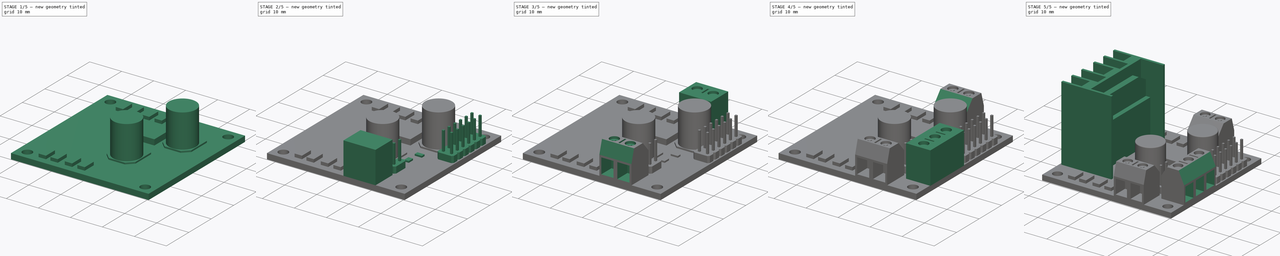
[diagram: build sequence overview — one tinted view per stage of 5, left to right]
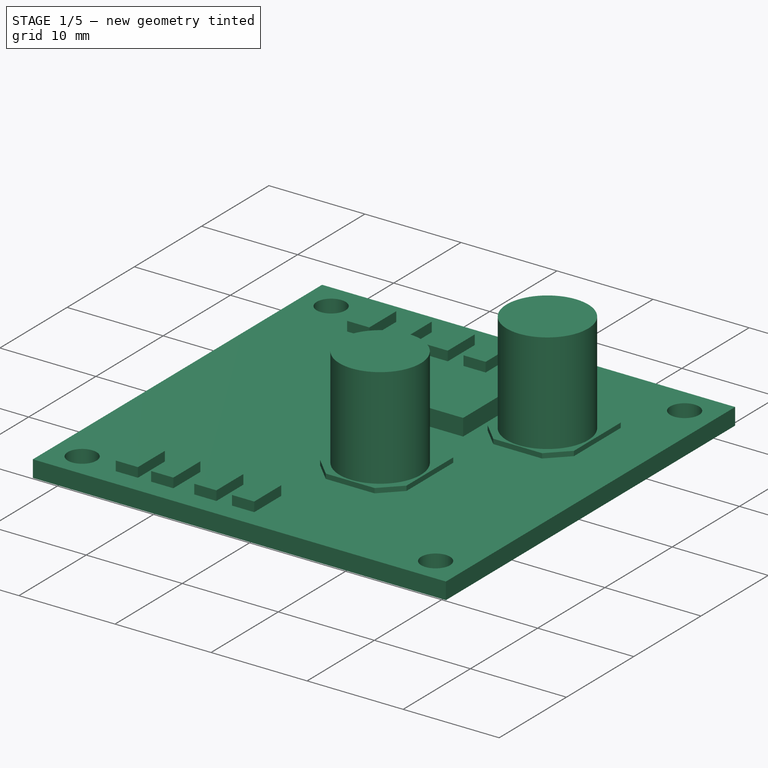
[diagram: stage 1 of 5 — iso view after this stage's code; geometry added in this stage tinted green]
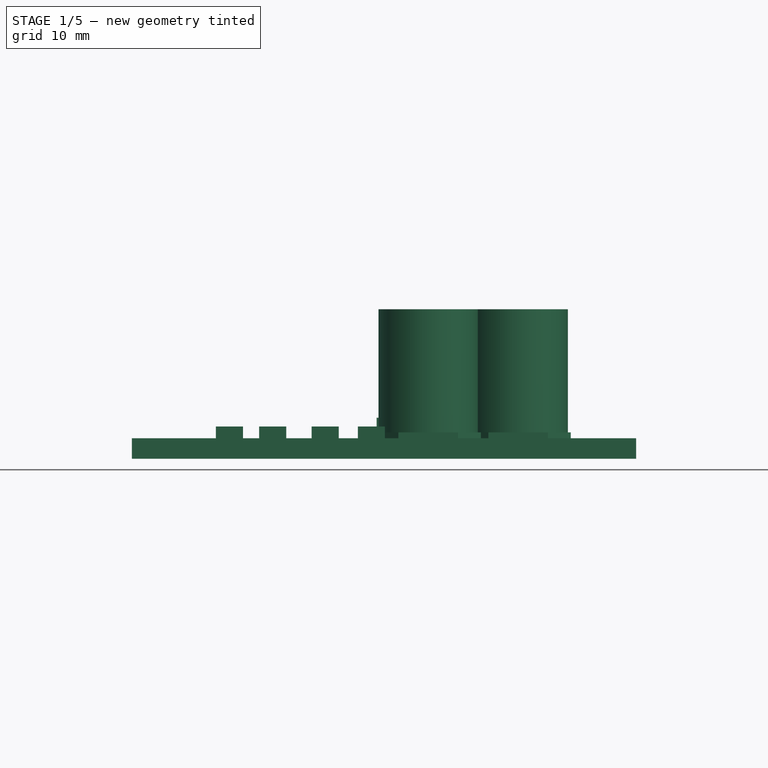
[diagram: stage 1 of 5 — front view after this stage's code; geometry added in this stage tinted green]
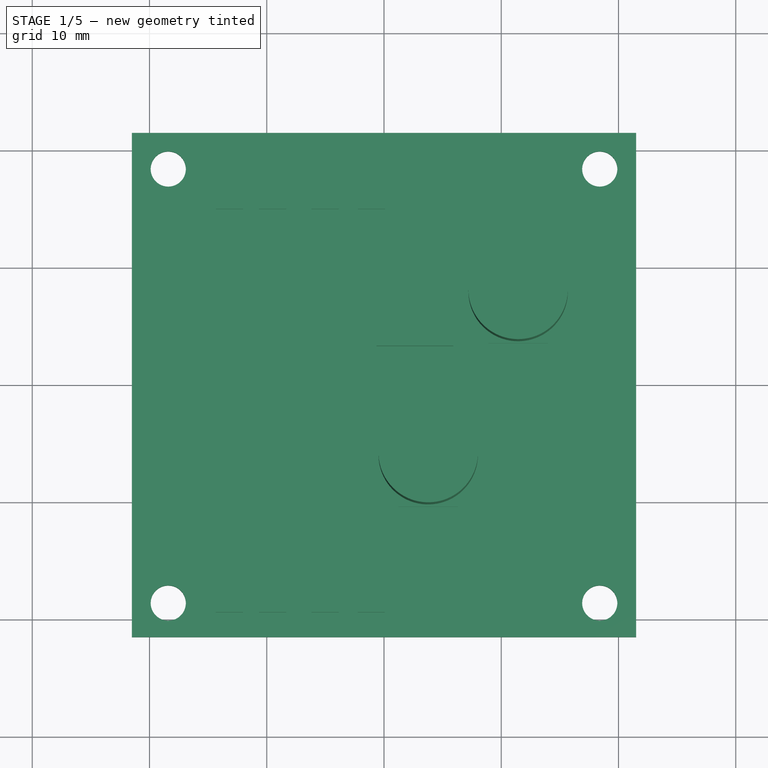
[diagram: stage 1 of 5 — top view after this stage's code; geometry added in this stage tinted green]
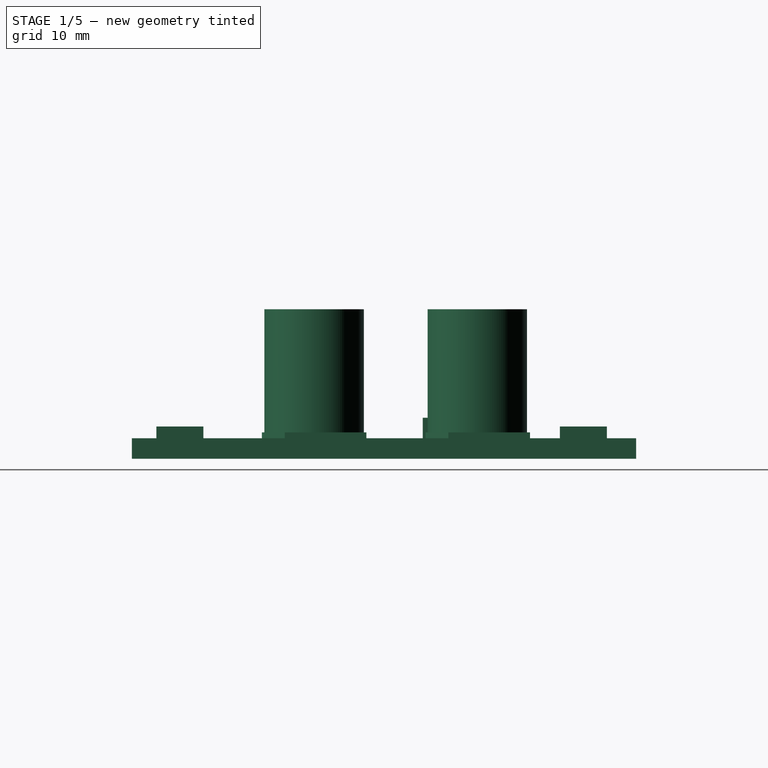
[diagram: stage 1 of 5 — right view after this stage's code; geometry added in this stage tinted green]
FCSTD DOCUMENT  (FreeCAD 1.0R39109 (Git))
Label: driver_l298
License: All rights reserved
LicenseURL: http://en.wikipedia.org/wiki/All_rights_reserved
objects: Sketcher::SketchObject×24, PartDesign::Pad×15, PartDesign::Pocket×9, PartDesign::Mirrored×5, PartDesign::LinearPattern×2, Image::ImagePlane×1, PartDesign::Fillet×1, PartDesign::Body×1
note: 138 computed .brp shape members not serialized (recipe doc carries the construction recipe); baked Part::Feature solids carry a one-line shape summary decoded from their .brp

FEATURE [Sketcher::SketchObject] Sketch
  ArcFitTolerance = 1e-06
  AttachmentSupport = -> [XY_Plane]
  FullyConstrained = true
  MakeInternals = false
  MapMode = 5
  sketch-geometry (5):
    g0: LineSegment StartX=-21.5 StartY=21.5 StartZ=0 EndX=-21.5 EndY=-21.5 EndZ=0
    g1: LineSegment StartX=-21.5 StartY=-21.5 StartZ=0 EndX=21.5 EndY=-21.5 EndZ=0
    g2: LineSegment StartX=21.5 StartY=-21.5 StartZ=0 EndX=21.5 EndY=21.5 EndZ=0
    g3: LineSegment StartX=21.5 StartY=21.5 StartZ=0 EndX=-21.5 EndY=21.5 EndZ=0
    g4: GeomPoint [constr] X=0 Y=0 Z=0
  constraints (12):
    c: Coincident(g0,g1)
    c: Coincident(g1,g2)
    c: Coincident(g2,g3)
    c: Coincident(g3,g0)
    c: Vertical(g0)
    c: Vertical(g2)
    c: Horizontal(g1)
    c: Horizontal(g3)
    c: Symmetric(g2,g0,g4)
    c: Coincident(g4,g-1)
    c: DistanceY(g2,g2) = 43
    c: Equal(g2,g1)
FEATURE [PartDesign::Pad] Pad  label="PCBPad"
  Direction = (0,0,1)
  Length = 1.75
  Length2 = 10
  Profile = -> Sketch
  ReferenceAxis = -> Sketch [N_Axis]
  Refine = true
  Suppressed = false
  Type = 0
FEATURE [Sketcher::SketchObject] Sketch001
  ArcFitTolerance = 1e-06
  AttachmentSupport = -> [Pad]
  ExternalGeometry = -> [Pad]
  FullyConstrained = true
  MakeInternals = false
  MapMode = 5
  Placement = pos=(0,0,1.75) rot=(0,0,1;0rad)
  sketch-geometry (6):
    g0: Circle CenterX=-18.4 CenterY=18.42 CenterZ=0 NormalX=0 NormalY=0 NormalZ=1 AngleXU=0 Radius=1.5
    g1: Circle CenterX=-18.4 CenterY=-18.6 CenterZ=0 NormalX=0 NormalY=0 NormalZ=1 AngleXU=0 Radius=1.5
    g2: Circle CenterX=18.4 CenterY=-18.6 CenterZ=0 NormalX=0 NormalY=0 NormalZ=1 AngleXU=0 Radius=1.5
    g3: Circle CenterX=18.4 CenterY=18.42 CenterZ=0 NormalX=0 NormalY=0 NormalZ=1 AngleXU=0 Radius=1.5
    g4: LineSegment [constr] StartX=-18.4 StartY=-18.6 StartZ=0 EndX=-21.5 EndY=-18.6 EndZ=0
    g5: LineSegment [constr] StartX=18.4 StartY=-18.6 StartZ=0 EndX=21.5 EndY=-18.6 EndZ=0
  constraints (18):
    c: Equal(g2,g0)
    c: Equal(g0,g1)
    c: Equal(g3,g2)
    c: Radius(g3) = 1.5
    c: Vertical(g0,g1)
    c: Vertical(g2,g3)
    c: Horizontal(g0,g3)
    c: Horizontal(g1,g2)
    c: DistanceX(g-4,g1) = 3.1
    c: DistanceY(g-4,g1) = 2.9
    c: Coincident(g4,g1)
    c: PointOnObject(g4,g-3)
    c: Horizontal(g4)
    c: Coincident(g5,g2)
    c: Horizontal(g5)
    c: Vertical(g-4,g5)
    c: Equal(g5,g4)
    c: DistanceY(g0,g-3) = 3.08
FEATURE [Image::ImagePlane] ln298n
  Placement = pos=(0.1,0.25,0) rot=(0,0,1;0rad)
  XSize = 48.3051
  YSize = 49.6172
  expr: XSize = 59.27 * 0.815 mm
  expr: YSize = 60.88 * 0.815 mm
FEATURE [PartDesign::Pocket] Pocket  label="ScrewPockets"
  BaseFeature = -> Pad
  Direction = (0,0,-1)
  Length = 5
  Length2 = 5
  Profile = -> Sketch001
  ReferenceAxis = -> Sketch001 [N_Axis]
  Refine = true
  Suppressed = false
  Type = 2
FEATURE [Sketcher::SketchObject] Sketch002
  ArcFitTolerance = 1e-06
  AttachmentSupport = -> [Pocket]
  FullyConstrained = true
  MakeInternals = false
  MapMode = 5
  Placement = pos=(0,0,1.75) rot=(0,0,1;0rad)
  sketch-geometry (2):
    g0: Circle CenterX=3.77 CenterY=-5.96 CenterZ=0 NormalX=0 NormalY=0 NormalZ=1 AngleXU=0 Radius=4.24
    g1: Circle CenterX=11.44 CenterY=7.96 CenterZ=0 NormalX=0 NormalY=0 NormalZ=1 AngleXU=0 Radius=4.24
  constraints (6):
    c: Equal(g0,g1)
    c: DistanceX(g0) = 3.77
    c: DistanceY(g0) = -5.96
    c: Radius(g0) = 4.24
    c: DistanceX(g1) = 11.44
    c: DistanceY(g-1,g1) = 7.96
FEATURE [PartDesign::Pad] Pad001  label="CapacitorPad"
  BaseFeature = -> Pocket
  Direction = (0,0,1)
  Length = 11
  Length2 = 10
  Profile = -> Sketch002
  ReferenceAxis = -> Sketch002 [N_Axis]
  Refine = true
  Suppressed = false
  Type = 0
FEATURE [Sketcher::SketchObject] Sketch003
  ArcFitTolerance = 1e-06
  AttachmentSupport = -> [Pad001]
  ExternalGeometry = -> [Sketch002]
  FullyConstrained = true
  MakeInternals = false
  MapMode = 5
  Placement = pos=(0,0,1.75) rot=(0,0,1;0rad)
  sketch-geometry (20):
    g0: LineSegment StartX=-0.72 StartY=-1.5 StartZ=0 EndX=8.26 EndY=-1.5 EndZ=0
    g1: LineSegment StartX=8.26 StartY=-1.5 StartZ=0 EndX=8.26 EndY=-8.46 EndZ=0
    g2: LineSegment StartX=8.26 StartY=-8.46 StartZ=0 EndX=6.31 EndY=-10.41 EndZ=0
    g3: LineSegment StartX=6.31 StartY=-10.41 StartZ=0 EndX=1.23 EndY=-10.41 EndZ=0
    g4: LineSegment StartX=1.23 StartY=-10.41 StartZ=0 EndX=-0.72 EndY=-8.46 EndZ=0
    g5: LineSegment StartX=-0.72 StartY=-8.46 StartZ=0 EndX=-0.72 EndY=-1.5 EndZ=0
    g6: GeomPoint X=3.77 Y=-1.5 Z=0
    g7: GeomPoint X=3.77 Y=-10.41 Z=0
    g8: GeomPoint X=8.01 Y=-5.96 Z=0
    g9: LineSegment StartX=6.95 StartY=12.45 StartZ=0 EndX=15.93 EndY=12.45 EndZ=0
    g10: LineSegment StartX=15.93 StartY=12.45 StartZ=0 EndX=15.93 EndY=5.49 EndZ=0
    g11: LineSegment StartX=15.93 StartY=5.49 StartZ=0 EndX=13.98 EndY=3.54 EndZ=0
    g12: LineSegment StartX=13.98 StartY=3.54 StartZ=0 EndX=8.9 EndY=3.54 EndZ=0
    g13: LineSegment StartX=8.9 StartY=3.54 StartZ=0 EndX=6.95 EndY=5.49 EndZ=0
    g14: LineSegment StartX=6.95 StartY=5.49 StartZ=0 EndX=6.95 EndY=12.45 EndZ=0
    g15: GeomPoint X=11.44 Y=12.45 Z=0
    g16: GeomPoint X=15.93 Y=8.97 Z=0
    g17: GeomPoint X=11.44 Y=3.54 Z=0
    g18: GeomPoint X=15.68 Y=7.96 Z=0
    g19: GeomPoint X=11.44 Y=12.2 Z=0
  constraints (47):
    c: Horizontal(g0)
    c: Coincident(g0,g1)
    c: Vertical(g1)
    c: Coincident(g1,g2)
    c: Coincident(g2,g3)
    c: Coincident(g3,g4)
    c: Coincident(g4,g5)
    c: Coincident(g5,g0)
    c: Vertical(g5)
    c: Horizontal(g3)
    c: Equal(g2,g4)
    c: Symmetric(g0,g0,g6)
    c: Symmetric(g3,g3,g7)
    c: Vertical(g7,g-3)
    c: Vertical(g-3,g6)
    c: PointOnObject(g8,g-3)
    c: Horizontal(g8,g-3)
    c: DistanceX(g8,g1) = 0.25
    c: Angle(g2,g3) = 2.35619
    c: DistanceY(g0,g-1) = 1.5
    c: DistanceY(g5,g5) = 6.96
    c: DistanceY(g3,g4) = 1.95
    c: Horizontal(g9)
    c: Coincident(g9,g10)
    c: Coincident(g10,g11)
    c: Coincident(g11,g12)
    c: Horizontal(g12)
    c: Coincident(g12,g13)
    c: Coincident(g13,g14)
    c: Coincident(g14,g9)
    c: Vertical(g14)
    c: Symmetric(g9,g9,g15)
    c: Symmetric(g10,g10,g16)
    c: Symmetric(g12,g12,g17)
    c: Vertical(g17,g-4)
    c: Vertical(g15,g-4)
    c: PointOnObject(g18,g-4)
    c: Horizontal(g18,g-4)
    c: Vertical(g10)
    c: DistanceX(g18,g16) = 0.25
    c: Equal(g10,g1)
    c: Equal(g11,g2)
    c: Equal(g13,g11)
    c: Angle(g13,g12) = 0.785398
    c: PointOnObject(g19,g-4)
    c: Vertical(g19,g15)
    c: DistanceY(g19,g15) = 0.25
FEATURE [PartDesign::Pad] Pad002  label="CapacitorConnectorPad"
  BaseFeature = -> Pad001
  Direction = (0,0,1)
  Length = 0.5
  Length2 = 10
  Profile = -> Sketch003
  ReferenceAxis = -> Sketch003 [N_Axis]
  Refine = true
  Suppressed = false
  Type = 0
FEATURE [Sketcher::SketchObject] Sketch004
  ArcFitTolerance = 1e-06
  AttachmentSupport = -> [Pad002]
  FullyConstrained = true
  MakeInternals = false
  MapMode = 5
  Placement = pos=(0,0,1.75) rot=(0,0,1;0rad)
  sketch-geometry (32):
    g0: LineSegment StartX=-14.34 StartY=19.01 StartZ=0 EndX=-14.34 EndY=15 EndZ=0
    g1: LineSegment StartX=-14.34 StartY=15 StartZ=0 EndX=-12.03 EndY=15 EndZ=0
    g2: LineSegment StartX=-12.03 StartY=15 StartZ=0 EndX=-12.03 EndY=19.01 EndZ=0
    g3: LineSegment StartX=-12.03 StartY=19.01 StartZ=0 EndX=-14.34 EndY=19.01 EndZ=0
    g4: LineSegment StartX=-10.65 StartY=19.01 StartZ=0 EndX=-10.65 EndY=15 EndZ=0
    g5: LineSegment StartX=-10.65 StartY=15 StartZ=0 EndX=-8.34 EndY=15 EndZ=0
    g6: LineSegment StartX=-8.34 StartY=15 StartZ=0 EndX=-8.34 EndY=19.01 EndZ=0
    g7: LineSegment StartX=-8.34 StartY=19.01 StartZ=0 EndX=-10.65 EndY=19.01 EndZ=0
    g8: LineSegment StartX=-6.17 StartY=19.01 StartZ=0 EndX=-6.17 EndY=15 EndZ=0
    g9: LineSegment StartX=-6.17 StartY=15 StartZ=0 EndX=-3.86 EndY=15 EndZ=0
    g10: LineSegment StartX=-3.86 StartY=15 StartZ=0 EndX=-3.86 EndY=19.01 EndZ=0
    g11: LineSegment StartX=-3.86 StartY=19.01 StartZ=0 EndX=-6.17 EndY=19.01 EndZ=0
    g12: LineSegment StartX=-2.23 StartY=19.01 StartZ=0 EndX=-2.23 EndY=15 EndZ=0
    g13: LineSegment StartX=-2.23 StartY=15 StartZ=0 EndX=0.08 EndY=15 EndZ=0
    g14: LineSegment StartX=0.08 StartY=15 StartZ=0 EndX=0.08 EndY=19.01 EndZ=0
    g15: LineSegment StartX=0.08 StartY=19.01 StartZ=0 EndX=-2.23 EndY=19.01 EndZ=0
    g16: LineSegment StartX=-14.34 StartY=-15.4 StartZ=0 EndX=-14.34 EndY=-19.41 EndZ=0
    g17: LineSegment StartX=-14.34 StartY=-19.41 StartZ=0 EndX=-12.03 EndY=-19.41 EndZ=0
    g18: LineSegment StartX=-12.03 StartY=-19.41 StartZ=0 EndX=-12.03 EndY=-15.4 EndZ=0
    g19: LineSegment StartX=-12.03 StartY=-15.4 StartZ=0 EndX=-14.34 EndY=-15.4 EndZ=0
    g20: LineSegment StartX=-10.65 StartY=-15.4 StartZ=0 EndX=-10.65 EndY=-19.41 EndZ=0
    g21: LineSegment StartX=-10.65 StartY=-19.41 StartZ=0 EndX=-8.34 EndY=-19.41 EndZ=0
    g22: LineSegment StartX=-8.34 StartY=-19.41 StartZ=0 EndX=-8.34 EndY=-15.4 EndZ=0
    g23: LineSegment StartX=-8.34 StartY=-15.4 StartZ=0 EndX=-10.65 EndY=-15.4 EndZ=0
    g24: LineSegment StartX=-6.17 StartY=-15.4 StartZ=0 EndX=-6.17 EndY=-19.41 EndZ=0
    g25: LineSegment StartX=-6.17 StartY=-19.41 StartZ=0 EndX=-3.86 EndY=-19.41 EndZ=0
    g26: LineSegment StartX=-3.86 StartY=-19.41 StartZ=0 EndX=-3.86 EndY=-15.4 EndZ=0
    g27: LineSegment StartX=-3.86 StartY=-15.4 StartZ=0 EndX=-6.17 EndY=-15.4 EndZ=0
    g28: LineSegment StartX=-2.23 StartY=-15.4 StartZ=0 EndX=-2.23 EndY=-19.41 EndZ=0
    g29: LineSegment StartX=-2.23 StartY=-19.41 StartZ=0 EndX=0.08 EndY=-19.41 EndZ=0
    g30: LineSegment StartX=0.08 StartY=-19.41 StartZ=0 EndX=0.08 EndY=-15.4 EndZ=0
    g31: LineSegment StartX=0.08 StartY=-15.4 StartZ=0 EndX=-2.23 EndY=-15.4 EndZ=0
  constraints (96):
    c: Coincident(g0,g1)
    c: Coincident(g1,g2)
    c: Coincident(g2,g3)
    c: Coincident(g3,g0)
    c: Vertical(g0)
    c: Vertical(g2)
    c: Horizontal(g1)
    c: Horizontal(g3)
    c: Coincident(g4,g5)
    c: Coincident(g5,g6)
    c: Coincident(g6,g7)
    c: Coincident(g7,g4)
    c: Vertical(g4)
    c: Vertical(g6)
    c: Horizontal(g5)
    c: Horizontal(g7)
    c: Coincident(g8,g9)
    c: Coincident(g9,g10)
    c: Coincident(g10,g11)
    c: Coincident(g11,g8)
    c: Vertical(g8)
    c: Vertical(g10)
    c: Horizontal(g9)
    c: Horizontal(g11)
    c: Coincident(g12,g13)
    c: Coincident(g13,g14)
    c: Coincident(g14,g15)
    c: Coincident(g15,g12)
    c: Vertical(g12)
    c: Vertical(g14)
    c: Horizontal(g13)
    c: Horizontal(g15)
    c: Coincident(g16,g17)
    c: Coincident(g17,g18)
    c: Coincident(g18,g19)
    c: Coincident(g19,g16)
    c: Vertical(g16)
    c: Vertical(g18)
    c: Horizontal(g17)
    c: Horizontal(g19)
    c: Coincident(g20,g21)
    c: Coincident(g21,g22)
    c: Coincident(g22,g23)
    c: Coincident(g23,g20)
    c: Vertical(g20)
    c: Vertical(g22)
    c: Horizontal(g21)
    c: Horizontal(g23)
    c: Coincident(g24,g25)
    c: Coincident(g25,g26)
    c: Coincident(g26,g27)
    c: Coincident(g27,g24)
    c: Vertical(g24)
    c: Vertical(g26)
    c: Horizontal(g25)
    c: Horizontal(g27)
    c: Coincident(g28,g29)
    c: Coincident(g29,g30)
    c: Coincident(g30,g31)
    c: Coincident(g31,g28)
    c: Vertical(g28)
    c: Vertical(g30)
    c: Horizontal(g29)
    c: Horizontal(g31)
    c: Equal(g19,g23)
    c: Equal(g27,g31)
    c: Equal(g23,g27)
    c: Equal(g1,g5)
    c: Equal(g5,g9)
    c: Equal(g9,g13)
    c: Equal(g1,g19)
    c: Vertical(g16,g0)
    c: Vertical(g4,g20)
    c: Vertical(g24,g8)
    c: Vertical(g12,g28)
    c: Horizontal(g2,g4)
    c: Horizontal(g8,g6)
    c: Horizontal(g12,g10)
    c: Horizontal(g8,g5)
    c: Horizontal(g1,g4)
    c: Horizontal(g12,g9)
    c: Horizontal(g18,g22)
    c: Horizontal(g22,g26)
    c: Horizontal(g26,g30)
    c: Horizontal(g28,g24)
    c: Horizontal(g24,g20)
    c: Horizontal(g20,g16)
    c: DistanceY(g0,g0) = 4.01
    c: DistanceX(g3,g3) = 2.31
    c: DistanceX(g1,g4) = 1.38
    c: DistanceX(g5,g8) = 2.17
    c: DistanceX(g12) = -2.23
    c: DistanceY(g13) = 15
    c: DistanceX(g9) = -3.86
    c: Equal(g16,g2)
    c: DistanceY(g30) = -15.4
FEATURE [PartDesign::Pad] Pad003  label="ResistanceArrayPad"
  BaseFeature = -> Pad002
  Direction = (0,0,1)
  Length = 1
  Length2 = 10
  Profile = -> Sketch004
  ReferenceAxis = -> Sketch004 [N_Axis]
  Refine = true
  Suppressed = false
  Type = 0
FEATURE [Sketcher::SketchObject] Sketch005
  ArcFitTolerance = 1e-06
  AttachmentSupport = -> [Pad003]
  FullyConstrained = true
  MakeInternals = false
  MapMode = 5
  Placement = pos=(0,0,1.75) rot=(0,0,1;0rad)
  sketch-geometry (4):
    g0: LineSegment StartX=-0.63 StartY=8.99 StartZ=0 EndX=-0.63 EndY=3.31 EndZ=0
    g1: LineSegment StartX=-0.63 StartY=3.31 StartZ=0 EndX=5.92 EndY=3.31 EndZ=0
    g2: LineSegment StartX=5.92 StartY=3.31 StartZ=0 EndX=5.92 EndY=8.99 EndZ=0
    g3: LineSegment StartX=5.92 StartY=8.99 StartZ=0 EndX=-0.63 EndY=8.99 EndZ=0
  constraints (12):
    c: Coincident(g0,g1)
    c: Coincident(g1,g2)
    c: Coincident(g2,g3)
    c: Coincident(g3,g0)
    c: Vertical(g0)
    c: Vertical(g2)
    c: Horizontal(g1)
    c: Horizontal(g3)
    c: DistanceY(g2,g2) = 5.68
    c: DistanceX(g3,g3) = 6.55
    c: DistanceY(g-1,g1) = 3.31
    c: DistanceX(g-1,g1) = 5.92
FEATURE [PartDesign::Pad] Pad004  label="ChipPad"
  BaseFeature = -> Pad003
  Direction = (0,0,1)
  Length = 1.75
  Length2 = 10
  Profile = -> Sketch005
  ReferenceAxis = -> Sketch005 [N_Axis]
  Refine = true
  Suppressed = false
  Type = 0
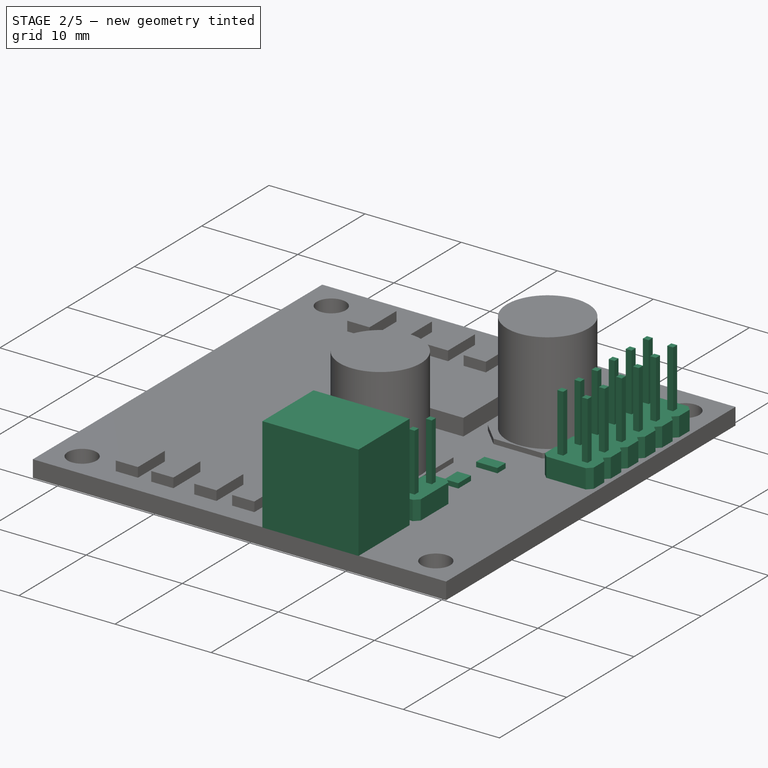
[diagram: stage 2 of 5 — iso view after this stage's code; geometry added in this stage tinted green]
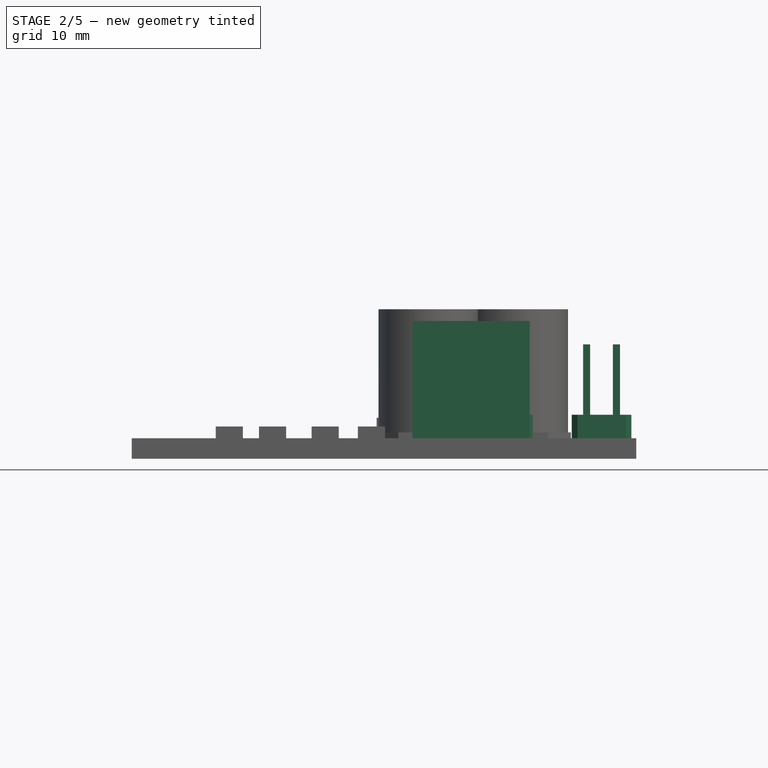
[diagram: stage 2 of 5 — front view after this stage's code; geometry added in this stage tinted green]
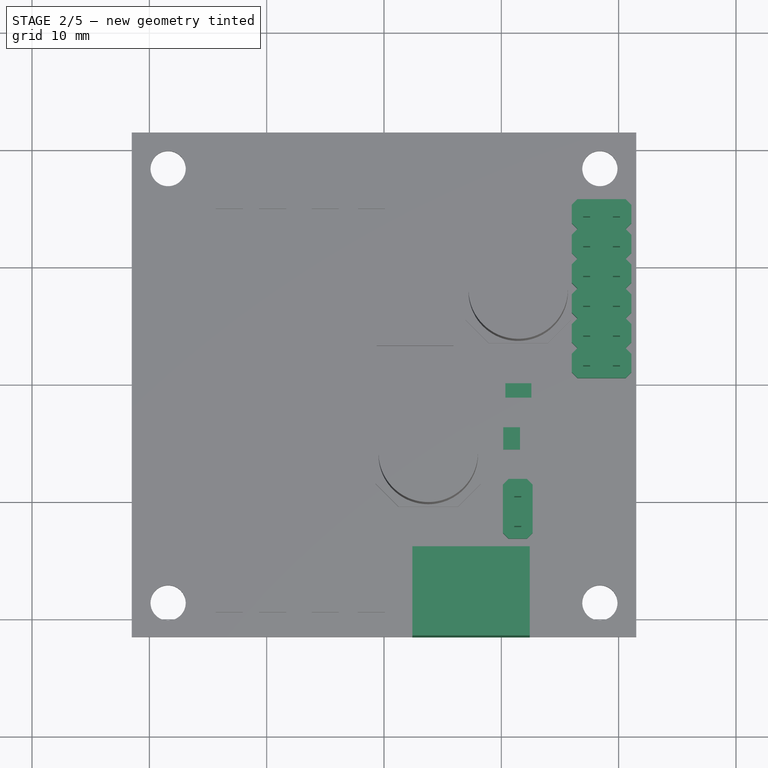
[diagram: stage 2 of 5 — top view after this stage's code; geometry added in this stage tinted green]
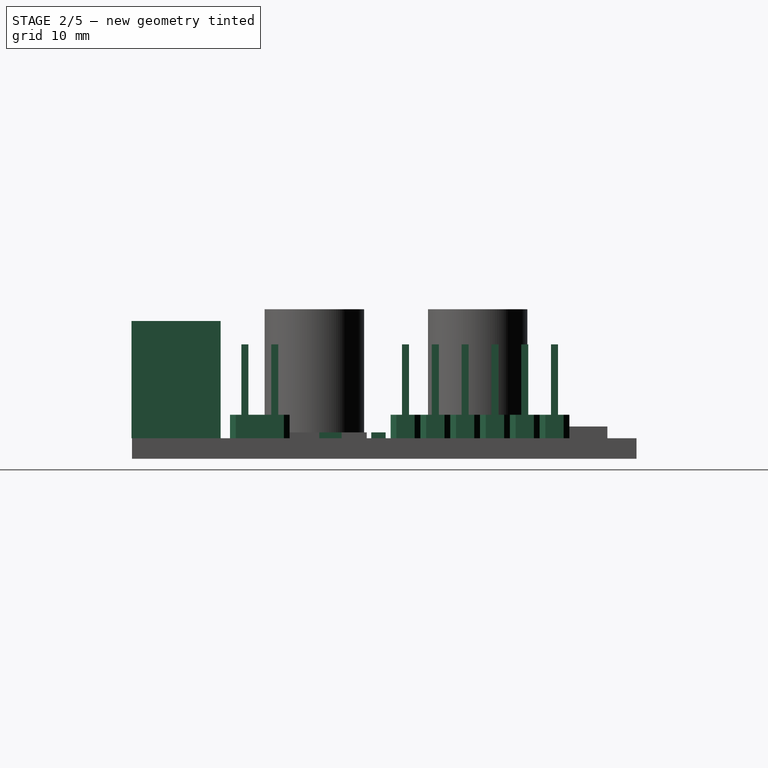
[diagram: stage 2 of 5 — right view after this stage's code; geometry added in this stage tinted green]
FEATURE [Sketcher::SketchObject] Sketch006
  ArcFitTolerance = 1e-06
  AttachmentSupport = -> [Pad004]
  FullyConstrained = true
  MakeInternals = false
  MapMode = 5
  Placement = pos=(0,0,1.75) rot=(0,0,1;0rad)
  sketch-geometry (8):
    g0: LineSegment StartX=10.35 StartY=0.11 StartZ=0 EndX=10.35 EndY=-1.11 EndZ=0
    g1: LineSegment StartX=10.35 StartY=-1.11 StartZ=0 EndX=12.56 EndY=-1.11 EndZ=0
    g2: LineSegment StartX=12.56 StartY=-1.11 StartZ=0 EndX=12.56 EndY=0.11 EndZ=0
    g3: LineSegment StartX=12.56 StartY=0.11 StartZ=0 EndX=10.35 EndY=0.11 EndZ=0
    g4: LineSegment StartX=10.16 StartY=-3.64 StartZ=0 EndX=10.16 EndY=-5.54 EndZ=0
    g5: LineSegment StartX=10.16 StartY=-5.54 StartZ=0 EndX=11.59 EndY=-5.54 EndZ=0
    g6: LineSegment StartX=11.59 StartY=-5.54 StartZ=0 EndX=11.59 EndY=-3.64 EndZ=0
    g7: LineSegment StartX=11.59 StartY=-3.64 StartZ=0 EndX=10.16 EndY=-3.64 EndZ=0
  constraints (24):
    c: Coincident(g0,g1)
    c: Coincident(g1,g2)
    c: Coincident(g2,g3)
    c: Coincident(g3,g0)
    c: Vertical(g0)
    c: Vertical(g2)
    c: Horizontal(g1)
    c: Horizontal(g3)
    c: Coincident(g4,g5)
    c: Coincident(g5,g6)
    c: Coincident(g6,g7)
    c: Coincident(g7,g4)
    c: Vertical(g4)
    c: Vertical(g6)
    c: Horizontal(g5)
    c: Horizontal(g7)
    c: DistanceY(g6,g6) = 1.9
    c: DistanceX(g5,g5) = 1.43
    c: DistanceX(g1,g1) = 2.21
    c: DistanceY(g2,g2) = 1.22
    c: DistanceX(g0) = 10.35
    c: DistanceY(g0) = -1.11
    c: DistanceY(g4,g0) = 2.53
    c: DistanceX(g6,g1) = 0.97
FEATURE [PartDesign::Pad] Pad005  label="SmallResistorsPad"
  BaseFeature = -> Pad004
  Direction = (0,0,1)
  Length = 0.5
  Length2 = 10
  Profile = -> Sketch006
  ReferenceAxis = -> Sketch006 [N_Axis]
  Refine = true
  Suppressed = false
  Type = 0
FEATURE [Sketcher::SketchObject] Sketch007
  ArcFitTolerance = 1e-06
  AttachmentSupport = -> [Pad005]
  FullyConstrained = true
  MakeInternals = false
  MapMode = 5
  Placement = pos=(0,0,1.75) rot=(0,0,1;0rad)
  sketch-geometry (8):
    g0: LineSegment StartX=16 StartY=15.29 StartZ=0 EndX=16 EndY=13.73 EndZ=0
    g1: LineSegment StartX=16 StartY=13.73 StartZ=0 EndX=16.49 EndY=13.24 EndZ=0
    g2: LineSegment StartX=16.49 StartY=13.24 StartZ=0 EndX=20.59 EndY=13.24 EndZ=0
    g3: LineSegment StartX=20.59 StartY=13.24 StartZ=0 EndX=21.08 EndY=13.73 EndZ=0
    g4: LineSegment StartX=21.08 StartY=13.73 StartZ=0 EndX=21.08 EndY=15.29 EndZ=0
    g5: LineSegment StartX=21.08 StartY=15.29 StartZ=0 EndX=20.59 EndY=15.78 EndZ=0
    g6: LineSegment StartX=20.59 StartY=15.78 StartZ=0 EndX=16.49 EndY=15.78 EndZ=0
    g7: LineSegment StartX=16.49 StartY=15.78 StartZ=0 EndX=16 EndY=15.29 EndZ=0
  constraints (24):
    c: Vertical(g0)
    c: Coincident(g0,g1)
    c: Coincident(g1,g2)
    c: Horizontal(g2)
    c: Coincident(g2,g3)
    c: Coincident(g3,g4)
    c: Coincident(g4,g5)
    c: Coincident(g5,g6)
    c: Horizontal(g6)
    c: Coincident(g6,g7)
    c: Coincident(g7,g0)
    c: DistanceX(g0,g4) = 5.08
    c: Vertical(g4)
    c: Equal(g1,g7)
    c: Equal(g7,g5)
    c: Equal(g5,g3)
    c: Angle(g2,g1) = 2.35619
    c: Parallel(g5,g1)
    c: Parallel(g3,g7)
    c: Angle(g3,g2) = 2.35619
    c: DistanceY(g2,g5) = 2.54
    c: DistanceX(g0) = 16
    c: DistanceY(g1) = 13.24
    c: DistanceX(g0,g1) = 0.49
FEATURE [PartDesign::Pad] Pad006  label="ConnectorBasePad"
  BaseFeature = -> Pad005
  Direction = (0,0,1)
  Length = 2
  Length2 = 10
  Profile = -> Sketch007
  ReferenceAxis = -> Sketch007 [N_Axis]
  Refine = true
  Suppressed = false
  Type = 0
FEATURE [Sketcher::SketchObject] Sketch008
  ArcFitTolerance = 1e-06
  AttachmentSupport = -> [Pad006]
  ExternalGeometry = -> [Pad006]
  FullyConstrained = true
  MakeInternals = false
  MapMode = 5
  Placement = pos=(0,0,3.75) rot=(0,0,1;0rad)
  sketch-geometry (15):
    g0: LineSegment [constr] StartX=16 StartY=13.73 StartZ=0 EndX=18.54 EndY=13.73 EndZ=0
    g1: LineSegment [constr] StartX=21.08 StartY=13.73 StartZ=0 EndX=18.54 EndY=13.73 EndZ=0
    g2: GeomPoint [constr] X=17.27 Y=13.73 Z=0
    g3: GeomPoint [constr] X=19.81 Y=13.73 Z=0
    g4: GeomPoint [constr] X=16 Y=14.51 Z=0
    g5: LineSegment StartX=16.97 StartY=14.81 StartZ=0 EndX=16.97 EndY=14.21 EndZ=0
    g6: LineSegment StartX=16.97 StartY=14.21 StartZ=0 EndX=17.57 EndY=14.21 EndZ=0
    g7: LineSegment StartX=17.57 StartY=14.21 StartZ=0 EndX=17.57 EndY=14.81 EndZ=0
    g8: LineSegment StartX=17.57 StartY=14.81 StartZ=0 EndX=16.97 EndY=14.81 EndZ=0
    g9: GeomPoint [constr] X=17.27 Y=14.51 Z=0
    g10: LineSegment StartX=19.51 StartY=14.81 StartZ=0 EndX=19.51 EndY=14.21 EndZ=0
    g11: LineSegment StartX=19.51 StartY=14.21 StartZ=0 EndX=20.11 EndY=14.21 EndZ=0
    g12: LineSegment StartX=20.11 StartY=14.21 StartZ=0 EndX=20.11 EndY=14.81 EndZ=0
    g13: LineSegment StartX=20.11 StartY=14.81 StartZ=0 EndX=19.51 EndY=14.81 EndZ=0
    g14: GeomPoint [constr] X=19.81 Y=14.51 Z=0
  constraints (34):
    c: Coincident(g0,g-4)
    c: Horizontal(g0)
    c: Coincident(g1,g-5)
    c: Coincident(g1,g0)
    c: Equal(g1,g0)
    c: Symmetric(g0,g0,g2)
    c: Symmetric(g1,g1,g3)
    c: Symmetric(g-4,g-4,g4)
    c: Coincident(g5,g6)
    c: Coincident(g6,g7)
    c: Coincident(g7,g8)
    c: Coincident(g8,g5)
    c: Vertical(g5)
    c: Vertical(g7)
    c: Horizontal(g6)
    c: Horizontal(g8)
    c: Symmetric(g7,g5,g9)
    c: Coincident(g10,g11)
    c: Coincident(g11,g12)
    c: Coincident(g12,g13)
    c: Coincident(g13,g10)
    c: Vertical(g10)
    c: Vertical(g12)
    c: Horizontal(g11)
    c: Horizontal(g13)
    c: Symmetric(g12,g10,g14)
    c: Equal(g7,g8)
    c: Equal(g8,g10)
    c: Equal(g10,g13)
    c: DistanceY(g12,g12) = 0.6
    c: Vertical(g9,g2)
    c: Vertical(g14,g3)
    c: Horizontal(g14,g9)
    c: Horizontal(g9,g4)
FEATURE [PartDesign::Pad] Pad007  label="ConnectorExtPad"
  BaseFeature = -> Pad006
  Direction = (0,0,1)
  Length = 6
  Length2 = 10
  Profile = -> Sketch008
  ReferenceAxis = -> Sketch008 [N_Axis]
  Refine = true
  Suppressed = false
  Type = 0
FEATURE [PartDesign::LinearPattern] LinearPattern  label="ConnectorPattern"
  BaseFeature = -> Pad007
  Direction = -> Sketch008 [V_Axis]
  Length = 12.7
  Mode = 1
  Occurrences = 6
  Offset = 2.54
  Originals = -> [Pad007,Pad006]
  Refine = true
  Reversed = true
  Suppressed = false
  TransformMode = 0
FEATURE [Sketcher::SketchObject] Sketch009
  ArcFitTolerance = 1e-06
  AttachmentSupport = -> [LinearPattern]
  ExternalGeometry = -> [Sketch007]
  FullyConstrained = true
  MakeInternals = false
  MapMode = 5
  Placement = pos=(0,0,1.75) rot=(0,0,1;0rad)
  sketch-geometry (8):
    g0: LineSegment StartX=10.13 StartY=-8.56 StartZ=0 EndX=10.13 EndY=-12.66 EndZ=0
    g1: LineSegment StartX=10.13 StartY=-12.66 StartZ=0 EndX=10.62 EndY=-13.15 EndZ=0
    g2: LineSegment StartX=10.62 StartY=-13.15 StartZ=0 EndX=12.18 EndY=-13.15 EndZ=0
    g3: LineSegment StartX=12.18 StartY=-13.15 StartZ=0 EndX=12.67 EndY=-12.66 EndZ=0
    g4: LineSegment StartX=12.67 StartY=-12.66 StartZ=0 EndX=12.67 EndY=-8.56 EndZ=0
    g5: LineSegment StartX=12.67 StartY=-8.56 StartZ=0 EndX=12.18 EndY=-8.07 EndZ=0
    g6: LineSegment StartX=12.18 StartY=-8.07 StartZ=0 EndX=10.62 EndY=-8.07 EndZ=0
    g7: LineSegment StartX=10.62 StartY=-8.07 StartZ=0 EndX=10.13 EndY=-8.56 EndZ=0
  constraints (24):
    c: Vertical(g0)
    c: Coincident(g0,g1)
    c: Coincident(g1,g2)
    c: Horizontal(g2)
    c: Coincident(g2,g3)
    c: Coincident(g3,g4)
    c: Vertical(g4)
    c: Coincident(g4,g5)
    c: Coincident(g5,g6)
    c: Coincident(g6,g7)
    c: Coincident(g7,g0)
    c: Equal(g3,g-4)
    c: Equal(g-5,g4)
    c: Equal(g-3,g2)
    c: Parallel(g3,g7)
    c: Parallel(g1,g5)
    c: Equal(g5,g7)
    c: Equal(g7,g1)
    c: Equal(g1,g3)
    c: Angle(g1,g0) = 2.35619
    c: Angle(g3,g2) = 2.35619
    c: Horizontal(g6)
    c: DistanceY(g0) = -8.56
    c: DistanceX(g0) = 10.13
FEATURE [PartDesign::Pad] Pad008  label="ConnectorBAse2Pad"
  BaseFeature = -> LinearPattern
  Direction = (0,0,1)
  Length = 2
  Length2 = 10
  Profile = -> Sketch009
  ReferenceAxis = -> Sketch009 [N_Axis]
  Refine = true
  Suppressed = false
  Type = 0
FEATURE [Sketcher::SketchObject] Sketch010
  ArcFitTolerance = 1e-06
  AttachmentSupport = -> [Pad008]
  ExternalGeometry = -> [Pad008]
  FullyConstrained = true
  MakeInternals = false
  MapMode = 5
  Placement = pos=(0,0,3.75) rot=(0,0,1;0rad)
  sketch-geometry (15):
    g0: LineSegment [constr] StartX=12.18 StartY=-8.07 StartZ=0 EndX=12.18 EndY=-10.61 EndZ=0
    g1: LineSegment [constr] StartX=12.18 StartY=-13.15 StartZ=0 EndX=12.18 EndY=-10.61 EndZ=0
    g2: GeomPoint [constr] X=11.4 Y=-13.15 Z=0
    g3: GeomPoint [constr] X=12.18 Y=-11.88 Z=0
    g4: GeomPoint [constr] X=12.18 Y=-9.34 Z=0
    g5: LineSegment StartX=11.1 StartY=-11.58 StartZ=0 EndX=11.1 EndY=-12.18 EndZ=0
    g6: LineSegment StartX=11.1 StartY=-12.18 StartZ=0 EndX=11.7 EndY=-12.18 EndZ=0
    g7: LineSegment StartX=11.7 StartY=-12.18 StartZ=0 EndX=11.7 EndY=-11.58 EndZ=0
    g8: LineSegment StartX=11.7 StartY=-11.58 StartZ=0 EndX=11.1 EndY=-11.58 EndZ=0
    g9: GeomPoint [constr] X=11.4 Y=-11.88 Z=0
    g10: LineSegment StartX=11.1 StartY=-9.04 StartZ=0 EndX=11.1 EndY=-9.64 EndZ=0
    g11: LineSegment StartX=11.1 StartY=-9.64 StartZ=0 EndX=11.7 EndY=-9.64 EndZ=0
    g12: LineSegment StartX=11.7 StartY=-9.64 StartZ=0 EndX=11.7 EndY=-9.04 EndZ=0
    g13: LineSegment StartX=11.7 StartY=-9.04 StartZ=0 EndX=11.1 EndY=-9.04 EndZ=0
    g14: GeomPoint [constr] X=11.4 Y=-9.34 Z=0
  constraints (34):
    c: Coincident(g0,g-6)
    c: Coincident(g1,g-4)
    c: Coincident(g1,g0)
    c: Vertical(g1)
    c: Equal(g1,g0)
    c: Symmetric(g-4,g-4,g2)
    c: Symmetric(g1,g1,g3)
    c: Symmetric(g0,g0,g4)
    c: Coincident(g5,g6)
    c: Coincident(g6,g7)
    c: Coincident(g7,g8)
    c: Coincident(g8,g5)
    c: Vertical(g5)
    c: Vertical(g7)
    c: Horizontal(g6)
    c: Horizontal(g8)
    c: Symmetric(g7,g5,g9)
    c: Coincident(g10,g11)
    c: Coincident(g11,g12)
    c: Coincident(g12,g13)
    c: Coincident(g13,g10)
    c: Vertical(g10)
    c: Vertical(g12)
    c: Horizontal(g11)
    c: Horizontal(g13)
    c: Symmetric(g12,g10,g14)
    c: Equal(g12,g11)
    c: Equal(g11,g6)
    c: Equal(g6,g7)
    c: Horizontal(g9,g3)
    c: Vertical(g9,g2)
    c: Horizontal(g14,g4)
    c: DistanceY(g12,g12) = 0.6
    c: Vertical(g14,g9)
FEATURE [PartDesign::Pad] Pad009  label="ConnectorExt2Pad"
  BaseFeature = -> Pad008
  Direction = (0,0,1)
  Length = 6
  Length2 = 10
  Profile = -> Sketch010
  ReferenceAxis = -> Sketch010 [N_Axis]
  Refine = true
  Suppressed = false
  Type = 0
FEATURE [Sketcher::SketchObject] Sketch011
  ArcFitTolerance = 1e-06
  AttachmentSupport = -> [Pad009]
  FullyConstrained = true
  MakeInternals = false
  MapMode = 5
  Placement = pos=(0,0,1.75) rot=(0,0,1;0rad)
  sketch-geometry (4):
    g0: LineSegment StartX=2.42 StartY=-13.95 StartZ=0 EndX=2.42 EndY=-21.55 EndZ=0
    g1: LineSegment StartX=2.42 StartY=-21.55 StartZ=0 EndX=12.42 EndY=-21.55 EndZ=0
    g2: LineSegment StartX=12.42 StartY=-21.55 StartZ=0 EndX=12.42 EndY=-13.95 EndZ=0
    g3: LineSegment StartX=12.42 StartY=-13.95 StartZ=0 EndX=2.42 EndY=-13.95 EndZ=0
  constraints (12):
    c: Coincident(g0,g1)
    c: Coincident(g1,g2)
    c: Coincident(g2,g3)
    c: Coincident(g3,g0)
    c: Vertical(g0)
    c: Vertical(g2)
    c: Horizontal(g1)
    c: Horizontal(g3)
    c: DistanceY(g2,g2) = 7.6
    c: DistanceX(g3,g3) = 10
    c: DistanceX(g-1,g0) = 2.42
    c: DistanceY(g0) = -13.95
FEATURE [PartDesign::Pad] Pad010  label="BorneraPad"
  BaseFeature = -> Pad009
  Direction = (0,0,1)
  Length = 10
  Length2 = 10
  Profile = -> Sketch011
  ReferenceAxis = -> Sketch011 [N_Axis]
  Refine = true
  Suppressed = false
  Type = 0
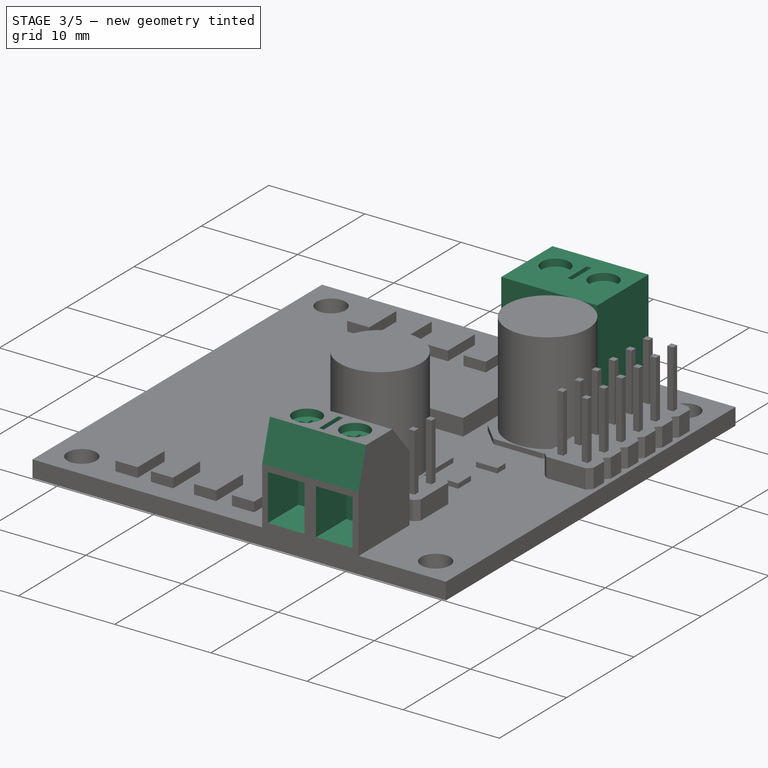
[diagram: stage 3 of 5 — iso view after this stage's code; geometry added in this stage tinted green]
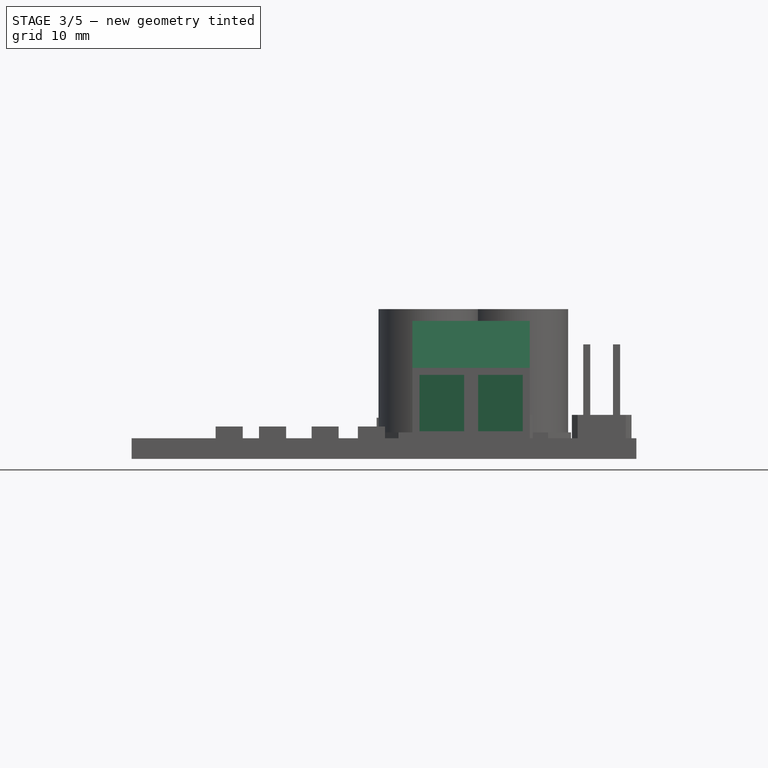
[diagram: stage 3 of 5 — front view after this stage's code; geometry added in this stage tinted green]
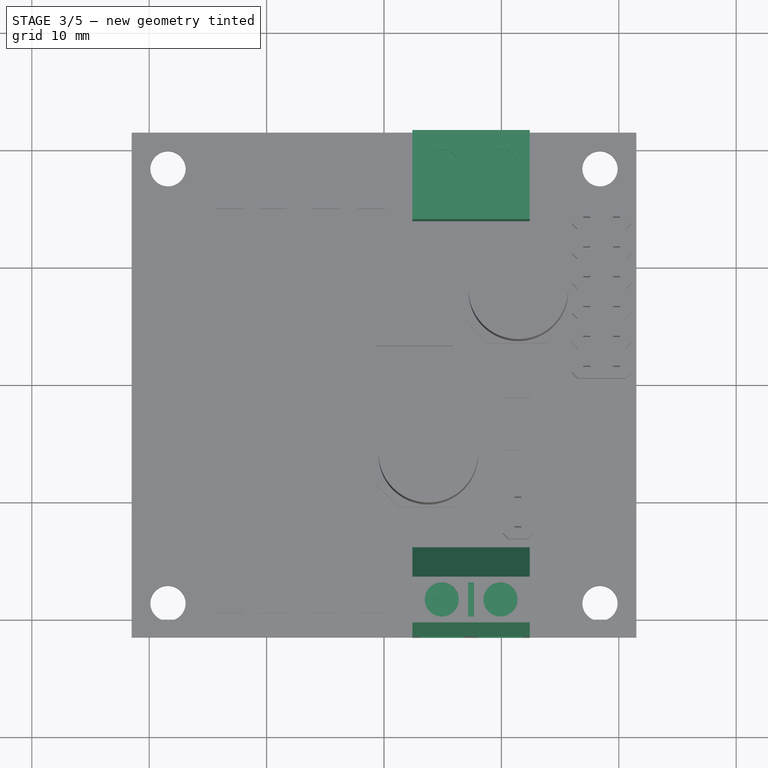
[diagram: stage 3 of 5 — top view after this stage's code; geometry added in this stage tinted green]
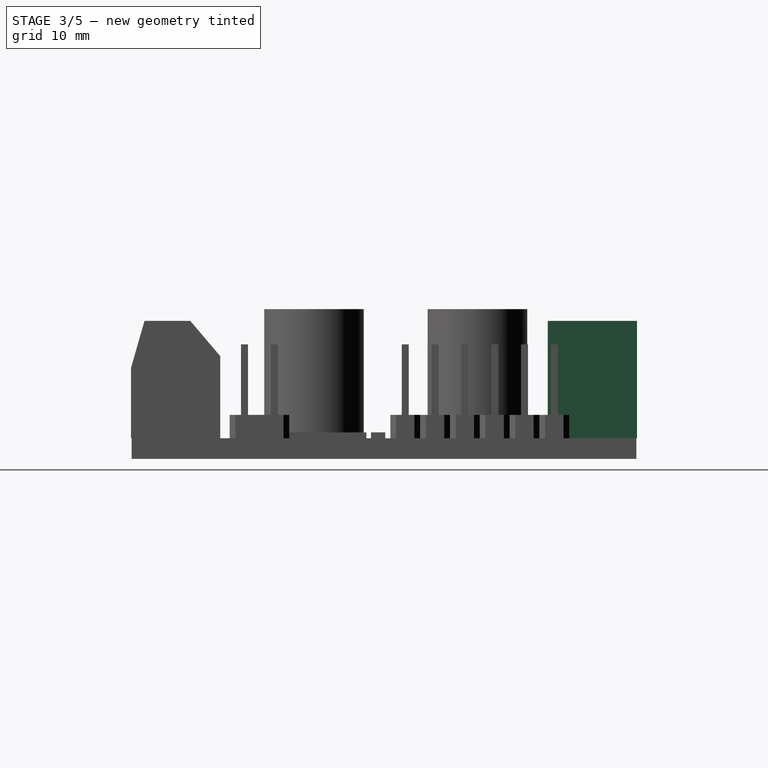
[diagram: stage 3 of 5 — right view after this stage's code; geometry added in this stage tinted green]
FEATURE [Sketcher::SketchObject] Sketch012
  ArcFitTolerance = 1e-06
  AttachmentSupport = -> [Pad010]
  ExternalGeometry = -> [Pad010]
  FullyConstrained = true
  MakeInternals = false
  MapMode = 5
  Placement = pos=(0,0,11.75) rot=(0,0,1;0rad)
  sketch-geometry (11):
    g0: LineSegment [constr] StartX=2.42 StartY=-13.95 StartZ=0 EndX=7.42 EndY=-13.95 EndZ=0
    g1: LineSegment [constr] StartX=7.42 StartY=-13.95 StartZ=0 EndX=12.42 EndY=-13.95 EndZ=0
    g2: GeomPoint [constr] X=4.92 Y=-13.95 Z=0
    g3: GeomPoint [constr] X=9.92 Y=-13.95 Z=0
    g4: Circle CenterX=4.92 CenterY=-18.45 CenterZ=0 NormalX=0 NormalY=0 NormalZ=1 AngleXU=0 Radius=1.45
    g5: Circle CenterX=9.92 CenterY=-18.45 CenterZ=0 NormalX=0 NormalY=0 NormalZ=1 AngleXU=0 Radius=1.45
    g6: LineSegment StartX=7.17 StartY=-17 StartZ=0 EndX=7.17 EndY=-19.9 EndZ=0
    g7: LineSegment StartX=7.17 StartY=-19.9 StartZ=0 EndX=7.67 EndY=-19.9 EndZ=0
    g8: LineSegment StartX=7.67 StartY=-19.9 StartZ=0 EndX=7.67 EndY=-17 EndZ=0
    g9: LineSegment StartX=7.67 StartY=-17 StartZ=0 EndX=7.17 EndY=-17 EndZ=0
    g10: GeomPoint [constr] X=7.42 Y=-18.45 Z=0
  constraints (26):
    c: Coincident(g0,g-3)
    c: Symmetric(g-3,g-3,g0)
    c: Coincident(g1,g0)
    c: Coincident(g1,g-4)
    c: Symmetric(g0,g0,g2)
    c: Symmetric(g1,g1,g3)
    c: Vertical(g4,g2)
    c: Vertical(g5,g3)
    c: Equal(g5,g4)
    c: Horizontal(g4,g5)
    c: Radius(g5) = 1.45
    c: DistanceY(g5,g3) = 4.5
    c: DistanceY(g-4,g-4) = 7.6
    c: Coincident(g6,g7)
    c: Coincident(g7,g8)
    c: Coincident(g8,g9)
    c: Coincident(g9,g6)
    c: Vertical(g6)
    c: Vertical(g8)
    c: Horizontal(g7)
    c: Horizontal(g9)
    c: Symmetric(g8,g6,g10)
    c: Vertical(g10,g0)
    c: Horizontal(g10,g4)
    c: Tangent(g9,g5)
    c: DistanceX(g9,g9) = 0.5
FEATURE [PartDesign::Pocket] Pocket001  label="BorneraPocket"
  BaseFeature = -> Pad010
  Direction = (0,0,-1)
  Length = 0.75
  Length2 = 5
  Profile = -> Sketch012
  ReferenceAxis = -> Sketch012 [N_Axis]
  Refine = true
  Suppressed = false
  Type = 0
FEATURE [Sketcher::SketchObject] Sketch013
  ArcFitTolerance = 1e-06
  AttachmentSupport = -> [Pocket001]
  ExternalGeometry = -> [Pocket001]
  FullyConstrained = true
  MakeInternals = false
  MapMode = 5
  Placement = pos=(12.42,0,0) rot=(0.57735,0.57735,0.57735;2.0944rad)
  sketch-geometry (9):
    g0: LineSegment StartX=-20.4 StartY=11.75 StartZ=0 EndX=-21.55 EndY=11.75 EndZ=0
    g1: LineSegment StartX=-13.95 StartY=11.75 StartZ=0 EndX=-16.5 EndY=11.75 EndZ=0
    g2: LineSegment StartX=-21.55 StartY=11.75 StartZ=0 EndX=-21.55 EndY=7.75 EndZ=0
    g3: LineSegment StartX=-21.55 StartY=7.75 StartZ=0 EndX=-20.4 EndY=11.75 EndZ=0
    g4: LineSegment StartX=-16.5 StartY=11.75 StartZ=0 EndX=-13.95 EndY=8.75 EndZ=0
    g5: LineSegment StartX=-13.95 StartY=8.75 StartZ=0 EndX=-13.95 EndY=11.75 EndZ=0
    g6: GeomPoint X=-21.55 Y=6.75 Z=0
    g7: LineSegment [constr] StartX=-19.9 StartY=11.75 StartZ=0 EndX=-20.4 EndY=11.75 EndZ=0
    g8: LineSegment [constr] StartX=-16.5 StartY=11.75 StartZ=0 EndX=-17 EndY=11.75 EndZ=0
  constraints (21):
    c: PointOnObject(g0,g-4)
    c: Coincident(g0,g-5)
    c: PointOnObject(g1,g-4)
    c: Coincident(g0,g2)
    c: PointOnObject(g2,g-5)
    c: Coincident(g2,g3)
    c: Coincident(g3,g0)
    c: Coincident(g1,g4)
    c: PointOnObject(g4,g-3)
    c: Coincident(g4,g5)
    c: Coincident(g5,g1)
    c: Symmetric(g-5,g-5,g6)
    c: DistanceY(g6,g2) = 1
    c: DistanceY(g2,g4) = 1
    c: Coincident(g7,g-6)
    c: Coincident(g7,g0)
    c: Coincident(g8,g1)
    c: Coincident(g8,g-6)
    c: Equal(g8,g7)
    c: DistanceX(g8,g8) = 0.5
    c: Coincident(g1,g-4)
FEATURE [PartDesign::Pocket] Pocket002  label="Bornera2Pocket"
  BaseFeature = -> Pocket001
  Direction = (-1,0,0)
  Length = 5
  Length2 = 5
  Profile = -> Sketch013
  ReferenceAxis = -> Sketch013 [N_Axis]
  Refine = true
  Suppressed = false
  Type = 2
FEATURE [Sketcher::SketchObject] Sketch014
  ArcFitTolerance = 1e-06
  AttachmentSupport = -> [Pocket002]
  ExternalGeometry = -> [Pocket002]
  FullyConstrained = true
  MakeInternals = false
  MapMode = 5
  Placement = pos=(0,-21.55,0) rot=(1,0,0;1.5708rad)
  sketch-geometry (12):
    g0: LineSegment StartX=3.02 StartY=7.15 StartZ=0 EndX=3.02 EndY=2.35 EndZ=0
    g1: LineSegment StartX=3.02 StartY=2.35 StartZ=0 EndX=6.82 EndY=2.35 EndZ=0
    g2: LineSegment StartX=6.82 StartY=2.35 StartZ=0 EndX=6.82 EndY=7.15 EndZ=0
    g3: LineSegment StartX=6.82 StartY=7.15 StartZ=0 EndX=3.02 EndY=7.15 EndZ=0
    g4: GeomPoint [constr] X=4.92 Y=4.75 Z=0
    g5: LineSegment StartX=8.02 StartY=7.15 StartZ=0 EndX=8.02 EndY=2.35 EndZ=0
    g6: LineSegment StartX=8.02 StartY=2.35 StartZ=0 EndX=11.82 EndY=2.35 EndZ=0
    g7: LineSegment StartX=11.82 StartY=2.35 StartZ=0 EndX=11.82 EndY=7.15 EndZ=0
    g8: LineSegment StartX=11.82 StartY=7.15 StartZ=0 EndX=8.02 EndY=7.15 EndZ=0
    g9: GeomPoint [constr] X=9.92 Y=4.75 Z=0
    g10: GeomPoint X=9.92 Y=11.75 Z=0
    g11: GeomPoint X=4.92 Y=11.75 Z=0
  constraints (28):
    c: Coincident(g0,g1)
    c: Coincident(g1,g2)
    c: Coincident(g2,g3)
    c: Coincident(g3,g0)
    c: Vertical(g0)
    c: Vertical(g2)
    c: Horizontal(g1)
    c: Horizontal(g3)
    c: Symmetric(g2,g0,g4)
    c: Coincident(g5,g6)
    c: Coincident(g6,g7)
    c: Coincident(g7,g8)
    c: Coincident(g8,g5)
    c: Vertical(g5)
    c: Vertical(g7)
    c: Horizontal(g6)
    c: Horizontal(g8)
    c: Symmetric(g7,g5,g9)
    c: Horizontal(g5,g2)
    c: Horizontal(g1,g5)
    c: Symmetric(g-4,g-4,g10)
    c: Symmetric(g-3,g-3,g11)
    c: Vertical(g4,g11)
    c: Vertical(g9,g10)
    c: DistanceX(g-5,g0) = 0.6
    c: Equal(g8,g3)
    c: DistanceY(g7,g-6) = 0.6
    c: DistanceY(g-7,g6) = 0.6
FEATURE [PartDesign::Pocket] Pocket003  label="Bornera3Pocket"
  BaseFeature = -> Pocket002
  Direction = (0,1,-2e-16)
  Length = 4.5
  Length2 = 5
  Profile = -> Sketch014
  ReferenceAxis = -> Sketch014 [N_Axis]
  Refine = true
  Suppressed = false
  Type = 0
FEATURE [Sketcher::SketchObject] Sketch015
  ArcFitTolerance = 1e-06
  AttachmentSupport = -> [Pocket003]
  ExternalGeometry = -> [Pocket003]
  FullyConstrained = true
  MakeInternals = false
  MapMode = 5
  Placement = pos=(0,0,11) rot=(0,0,1;0rad)
  sketch-geometry (24):
    g0: LineSegment StartX=4.795 StartY=-17.625 StartZ=0 EndX=4.795 EndY=-18.325 EndZ=0
    g1: LineSegment StartX=4.795 StartY=-18.325 StartZ=0 EndX=4.095 EndY=-18.325 EndZ=0
    g2: LineSegment StartX=4.095 StartY=-18.325 StartZ=0 EndX=4.095 EndY=-18.575 EndZ=0
    g3: LineSegment StartX=4.095 StartY=-18.575 StartZ=0 EndX=4.795 EndY=-18.575 EndZ=0
    g4: LineSegment StartX=4.795 StartY=-18.575 StartZ=0 EndX=4.795 EndY=-19.275 EndZ=0
    g5: LineSegment StartX=4.795 StartY=-19.275 StartZ=0 EndX=5.045 EndY=-19.275 EndZ=0
    g6: LineSegment StartX=5.045 StartY=-19.275 StartZ=0 EndX=5.045 EndY=-18.575 EndZ=0
    g7: LineSegment StartX=5.045 StartY=-18.575 StartZ=0 EndX=5.745 EndY=-18.575 EndZ=0
    g8: LineSegment StartX=5.745 StartY=-18.575 StartZ=0 EndX=5.745 EndY=-18.325 EndZ=0
    g9: LineSegment StartX=5.745 StartY=-18.325 StartZ=0 EndX=5.045 EndY=-18.325 EndZ=0
    g10: LineSegment StartX=5.045 StartY=-18.325 StartZ=0 EndX=5.045 EndY=-17.625 EndZ=0
    g11: LineSegment StartX=5.045 StartY=-17.625 StartZ=0 EndX=4.795 EndY=-17.625 EndZ=0
    g12: LineSegment StartX=9.795 StartY=-17.625 StartZ=0 EndX=9.795 EndY=-18.325 EndZ=0
    g13: LineSegment StartX=9.795 StartY=-18.325 StartZ=0 EndX=9.095 EndY=-18.325 EndZ=0
    g14: LineSegment StartX=9.095 StartY=-18.325 StartZ=0 EndX=9.095 EndY=-18.575 EndZ=0
    g15: LineSegment StartX=9.095 StartY=-18.575 StartZ=0 EndX=9.795 EndY=-18.575 EndZ=0
    g16: LineSegment StartX=9.795 StartY=-18.575 StartZ=0 EndX=9.795 EndY=-19.275 EndZ=0
    g17: LineSegment StartX=9.795 StartY=-19.275 StartZ=0 EndX=10.045 EndY=-19.275 EndZ=0
    g18: LineSegment StartX=10.045 StartY=-19.275 StartZ=0 EndX=10.045 EndY=-18.575 EndZ=0
    g19: LineSegment StartX=10.045 StartY=-18.575 StartZ=0 EndX=10.745 EndY=-18.575 EndZ=0
    g20: LineSegment StartX=10.745 StartY=-18.575 StartZ=0 EndX=10.745 EndY=-18.325 EndZ=0
    g21: LineSegment StartX=10.745 StartY=-18.325 StartZ=0 EndX=10.045 EndY=-18.325 EndZ=0
    g22: LineSegment StartX=10.045 StartY=-18.325 StartZ=0 EndX=10.045 EndY=-17.625 EndZ=0
    g23: LineSegment StartX=10.045 StartY=-17.625 StartZ=0 EndX=9.795 EndY=-17.625 EndZ=0
  constraints (70):
    c: Coincident(g0,g1)
    c: Coincident(g1,g2)
    c: Vertical(g2)
    c: Coincident(g2,g3)
    c: Horizontal(g3)
    c: Coincident(g3,g4)
    c: Vertical(g4)
    c: Coincident(g4,g5)
    c: Coincident(g5,g6)
    c: Coincident(g6,g7)
    c: Horizontal(g7)
    c: Coincident(g7,g8)
    c: Vertical(g8)
    c: Coincident(g8,g9)
    c: Horizontal(g9)
    c: Coincident(g9,g10)
    c: Coincident(g10,g11)
    c: Coincident(g11,g0)
    c: Horizontal(g11)
    c: Coincident(g12,g13)
    c: Coincident(g13,g14)
    c: Coincident(g14,g15)
    c: Coincident(g15,g16)
    c: Coincident(g16,g17)
    c: Coincident(g17,g18)
    c: Coincident(g18,g19)
    c: Coincident(g19,g20)
    c: Coincident(g20,g21)
    c: Coincident(g21,g22)
    c: Coincident(g22,g23)
    c: Coincident(g23,g12)
    c: Vertical(g12)
    c: Vertical(g22)
    c: Vertical(g16)
    c: Vertical(g18)
    c: Horizontal(g15)
    c: Horizontal(g13)
    c: Horizontal(g21)
    c: Horizontal(g19)
    c: Horizontal(g1)
    c: Vertical(g10)
    c: Vertical(g0)
    c: Vertical(g6)
    c: Horizontal(g7,g14)
    c: Vertical(g14)
    c: Vertical(g20)
    c: Horizontal(g13,g21)
    c: Horizontal(g15,g18)
    c: Vertical(g18,g21)
    c: Vertical(g15,g12)
    c: Equal(g13,g21)
    c: Horizontal(g23)
    c: Horizontal(g17)
    c: Equal(g17,g20)
    c: Horizontal(g5)
    c: Equal(g5,g8)
    c: Equal(g10,g9)
    c: Equal(g0,g1)
    c: Horizontal(g0,g9)
    c: Horizontal(g3,g6)
    c: Vertical(g6,g9)
    c: Vertical(g0,g3)
    c: Horizontal(g10,g12)
    c: Horizontal(g16,g5)
    c: Equal(g9,g13)
    c: Symmetric(g9,g3,g-3)
    c: Symmetric(g21,g15,g-4)
    c: DistanceY(g10,g10) = 0.7
    c: DistanceY(g8,g8) = 0.25
    c: Equal(g16,g12)
FEATURE [PartDesign::Pocket] Pocket004  label="Bornera4Pocket"
  BaseFeature = -> Pocket003
  Direction = (0,0,-1)
  Length = 0.25
  Length2 = 5
  Profile = -> Sketch015
  ReferenceAxis = -> Sketch015 [N_Axis]
  Refine = true
  Suppressed = false
  Type = 0
FEATURE [PartDesign::Mirrored] Mirrored  label="BorneraMirror"
  BaseFeature = -> Pocket004
  MirrorPlane = -> XZ_Plane
  Originals = -> [Pad010]
  Refine = true
  Suppressed = false
  TransformMode = 0
FEATURE [PartDesign::Mirrored] Mirrored001  label="BorneraMirror2"
  BaseFeature = -> Mirrored
  MirrorPlane = -> XZ_Plane
  Originals = -> [Pocket001]
  Refine = true
  Suppressed = false
  TransformMode = 0
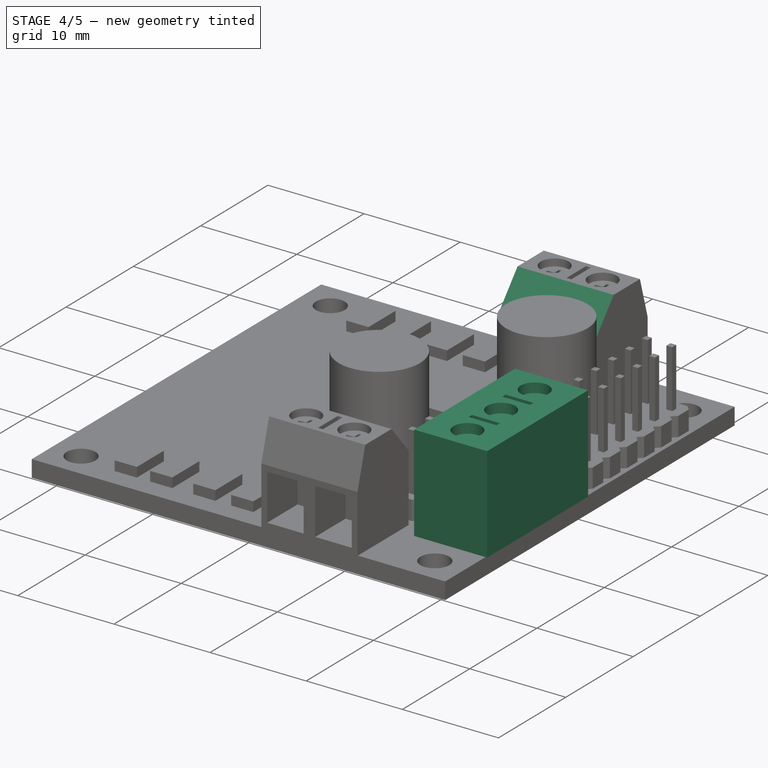
[diagram: stage 4 of 5 — iso view after this stage's code; geometry added in this stage tinted green]
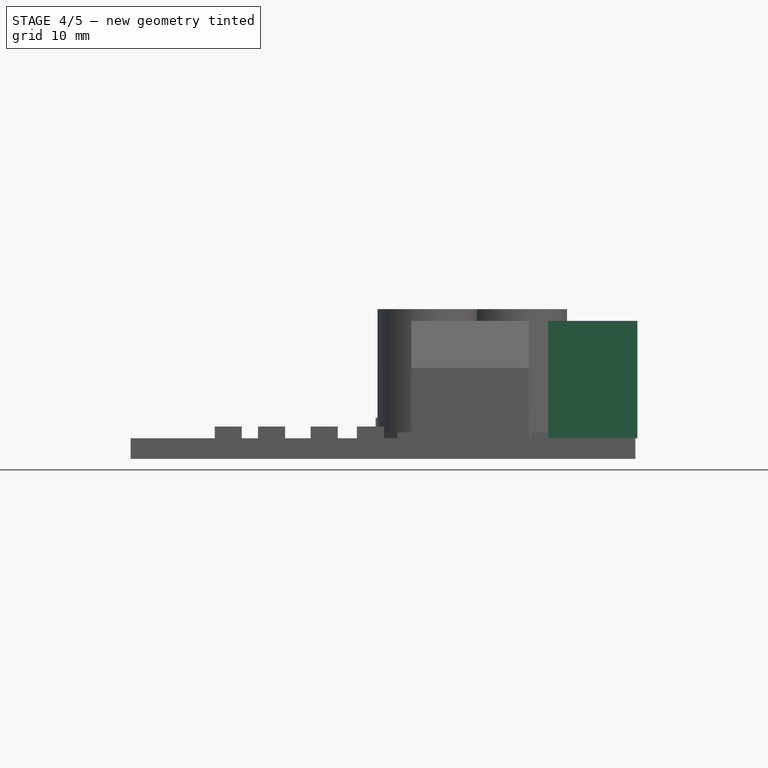
[diagram: stage 4 of 5 — front view after this stage's code; geometry added in this stage tinted green]
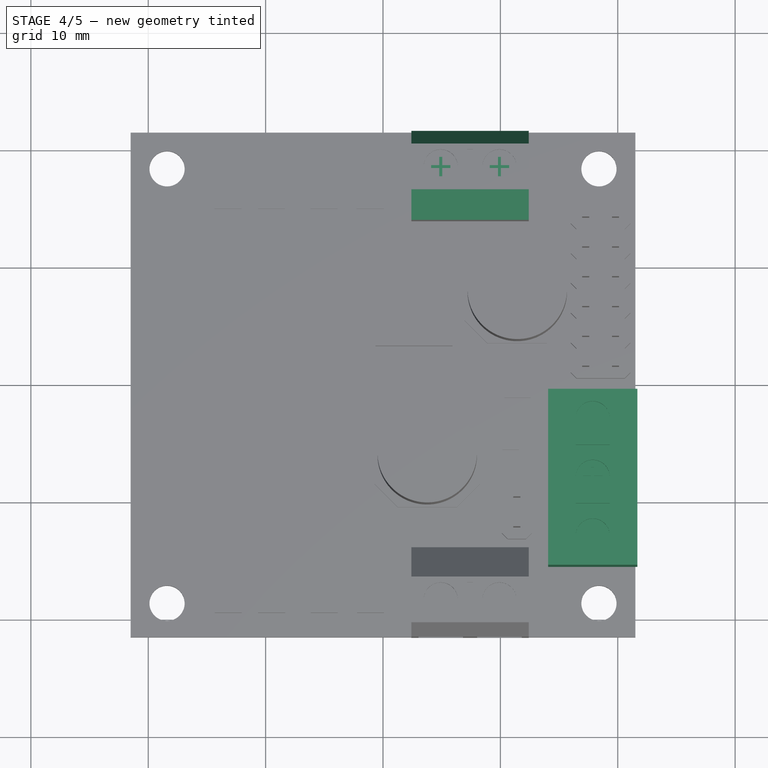
[diagram: stage 4 of 5 — top view after this stage's code; geometry added in this stage tinted green]
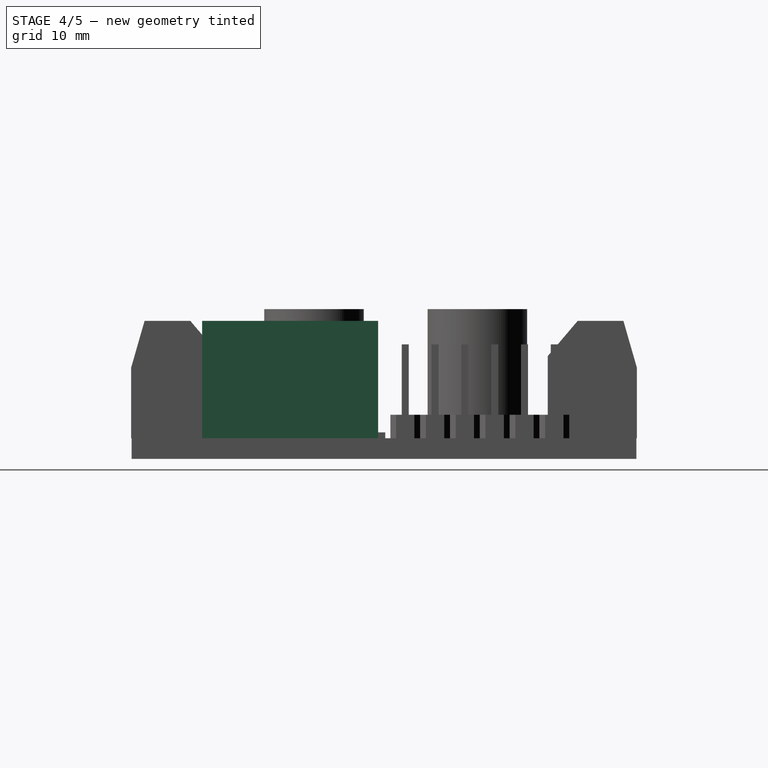
[diagram: stage 4 of 5 — right view after this stage's code; geometry added in this stage tinted green]
FEATURE [PartDesign::Mirrored] Mirrored002  label="BorneraMirror3"
  BaseFeature = -> Mirrored001
  MirrorPlane = -> XZ_Plane
  Originals = -> [Pocket002]
  Refine = true
  Suppressed = false
  TransformMode = 0
FEATURE [PartDesign::Mirrored] Mirrored003  label="BorneraMirror4"
  BaseFeature = -> Mirrored002
  MirrorPlane = -> XZ_Plane
  Originals = -> [Pocket003]
  Refine = true
  Suppressed = false
  TransformMode = 0
FEATURE [PartDesign::Mirrored] Mirrored004  label="BorneraMirror5"
  BaseFeature = -> Mirrored003
  MirrorPlane = -> XZ_Plane
  Originals = -> [Pocket004]
  Refine = true
  Suppressed = false
  TransformMode = 0
FEATURE [Sketcher::SketchObject] Sketch016
  ArcFitTolerance = 1e-06
  AttachmentSupport = -> [Mirrored004]
  ExternalGeometry = -> [Mirrored004]
  FullyConstrained = true
  MakeInternals = false
  MapMode = 5
  Placement = pos=(0,0,1.75) rot=(0,0,1;0rad)
  sketch-geometry (5):
    g0: LineSegment StartX=14.07 StartY=-0.5 StartZ=0 EndX=14.07 EndY=-15.5 EndZ=0
    g1: LineSegment StartX=14.07 StartY=-15.5 StartZ=0 EndX=21.67 EndY=-15.5 EndZ=0
    g2: LineSegment StartX=21.67 StartY=-15.5 StartZ=0 EndX=21.67 EndY=-0.5 EndZ=0
    g3: LineSegment StartX=21.67 StartY=-0.5 StartZ=0 EndX=14.07 EndY=-0.5 EndZ=0
    g4: LineSegment [constr] StartX=12.42 StartY=-13.95 StartZ=0 EndX=12.42 EndY=-21.55 EndZ=0
  constraints (14):
    c: Coincident(g0,g1)
    c: Coincident(g1,g2)
    c: Coincident(g2,g3)
    c: Coincident(g3,g0)
    c: Vertical(g0)
    c: Vertical(g2)
    c: Horizontal(g1)
    c: Horizontal(g3)
    c: Coincident(g4,g-3)
    c: Coincident(g4,g-4)
    c: Equal(g4,g1)
    c: DistanceY(g0,g0) = 15
    c: DistanceY(g2) = -0.5
    c: DistanceX(g0) = 14.07
FEATURE [PartDesign::Pad] Pad011  label="Bornera2Pad"
  BaseFeature = -> Mirrored004
  Direction = (0,0,1)
  Length = 10
  Length2 = 10
  Profile = -> Sketch016
  ReferenceAxis = -> Sketch016 [N_Axis]
  Refine = true
  Suppressed = false
  Type = 0
FEATURE [Sketcher::SketchObject] Sketch017
  ArcFitTolerance = 1e-06
  AttachmentSupport = -> [Pad011]
  ExternalGeometry = -> [Pad011]
  FullyConstrained = true
  MakeInternals = false
  MapMode = 5
  Placement = pos=(0,0,11.75) rot=(0,0,1;0rad)
  sketch-geometry (20):
    g0: LineSegment [constr] StartX=14.07 StartY=-0.5 StartZ=0 EndX=14.07 EndY=-5.5 EndZ=0
    g1: LineSegment [constr] StartX=14.07 StartY=-5.5 StartZ=0 EndX=14.07 EndY=-10.5 EndZ=0
    g2: LineSegment [constr] StartX=14.07 StartY=-10.5 StartZ=0 EndX=14.07 EndY=-15.5 EndZ=0
    g3: GeomPoint [constr] X=17.87 Y=-15.5 Z=0
    g4: Circle CenterX=17.87 CenterY=-13 CenterZ=0 NormalX=0 NormalY=0 NormalZ=1 AngleXU=0 Radius=1.45
    g5: Circle CenterX=17.87 CenterY=-8 CenterZ=0 NormalX=0 NormalY=0 NormalZ=1 AngleXU=0 Radius=1.45
    g6: Circle CenterX=17.87 CenterY=-3 CenterZ=0 NormalX=0 NormalY=0 NormalZ=1 AngleXU=0 Radius=1.45
    g7: GeomPoint [constr] X=14.07 Y=-8 Z=0
    g8: GeomPoint [constr] X=14.07 Y=-3 Z=0
    g9: GeomPoint [constr] X=14.07 Y=-13 Z=0
    g10: LineSegment StartX=16.42 StartY=-10.25 StartZ=0 EndX=16.42 EndY=-10.75 EndZ=0
    g11: LineSegment StartX=16.42 StartY=-10.75 StartZ=0 EndX=19.32 EndY=-10.75 EndZ=0
    g12: LineSegment StartX=19.32 StartY=-10.75 StartZ=0 EndX=19.32 EndY=-10.25 EndZ=0
    g13: LineSegment StartX=19.32 StartY=-10.25 StartZ=0 EndX=16.42 EndY=-10.25 EndZ=0
    g14: GeomPoint [constr] X=17.87 Y=-10.5 Z=0
    g15: LineSegment StartX=16.42 StartY=-5.25 StartZ=0 EndX=16.42 EndY=-5.75 EndZ=0
    g16: LineSegment StartX=16.42 StartY=-5.75 StartZ=0 EndX=19.32 EndY=-5.75 EndZ=0
    g17: LineSegment StartX=19.32 StartY=-5.75 StartZ=0 EndX=19.32 EndY=-5.25 EndZ=0
    g18: LineSegment StartX=19.32 StartY=-5.25 StartZ=0 EndX=16.42 EndY=-5.25 EndZ=0
    g19: GeomPoint [constr] X=17.87 Y=-5.5 Z=0
  constraints (47):
    c: Coincident(g-4,g0)
    c: PointOnObject(g0,g-3)
    c: Coincident(g0,g1)
    c: PointOnObject(g1,g-3)
    c: Coincident(g1,g2)
    c: Coincident(g2,g-5)
    c: Equal(g2,g1)
    c: Equal(g1,g0)
    c: Symmetric(g-5,g-5,g3)
    c: Equal(g4,g5)
    c: Equal(g5,g6)
    c: Symmetric(g1,g1,g7)
    c: Symmetric(g0,g0,g8)
    c: Symmetric(g2,g2,g9)
    c: Horizontal(g6,g8)
    c: Horizontal(g7,g5)
    c: Horizontal(g9,g4)
    c: Equal(g-6,g4)
    c: Vertical(g3,g4)
    c: Vertical(g4,g5)
    c: Vertical(g5,g6)
    c: Coincident(g10,g11)
    c: Coincident(g11,g12)
    c: Coincident(g12,g13)
    c: Coincident(g13,g10)
    c: Vertical(g10)
    c: Vertical(g12)
    c: Horizontal(g11)
    c: Horizontal(g13)
    c: Symmetric(g12,g10,g14)
    c: Coincident(g15,g16)
    c: Coincident(g16,g17)
    c: Coincident(g17,g18)
    c: Coincident(g18,g15)
    c: Vertical(g15)
    c: Vertical(g17)
    c: Horizontal(g16)
    c: Horizontal(g18)
    c: Symmetric(g17,g15,g19)
    c: Vertical(g14,g5)
    c: Vertical(g5,g19)
    c: Vertical(g12,g16)
    c: Tangent(g5,g12)
    c: Equal(g-7,g10)
    c: Horizontal(g1,g14)
    c: Horizontal(g0,g19)
    c: Equal(g15,g10)
FEATURE [PartDesign::Pocket] Pocket005  label="Bornera5Pocket"
  BaseFeature = -> Pad011
  Direction = (0,0,-1)
  Length = 1
  Length2 = 5
  Profile = -> Sketch017
  ReferenceAxis = -> Sketch017 [N_Axis]
  Refine = true
  Suppressed = false
  Type = 0
FEATURE [Sketcher::SketchObject] Sketch018
  ArcFitTolerance = 1e-06
  AttachmentSupport = -> [Pocket005]
  ExternalGeometry = -> [Pocket005]
  FullyConstrained = true
  MakeInternals = false
  MapMode = 5
  Placement = pos=(0,0,10.75) rot=(0,0,1;0rad)
  sketch-geometry (12):
    g0: LineSegment StartX=17.045 StartY=-12.875 StartZ=0 EndX=17.745 EndY=-12.875 EndZ=0
    g1: LineSegment StartX=17.745 StartY=-12.875 StartZ=0 EndX=17.745 EndY=-12.175 EndZ=0
    g2: LineSegment StartX=17.745 StartY=-12.175 StartZ=0 EndX=17.995 EndY=-12.175 EndZ=0
    g3: LineSegment StartX=17.995 StartY=-12.175 StartZ=0 EndX=17.995 EndY=-12.875 EndZ=0
    g4: LineSegment StartX=17.995 StartY=-12.875 StartZ=0 EndX=18.695 EndY=-12.875 EndZ=0
    g5: LineSegment StartX=18.695 StartY=-12.875 StartZ=0 EndX=18.695 EndY=-13.125 EndZ=0
    g6: LineSegment StartX=18.695 StartY=-13.125 StartZ=0 EndX=17.995 EndY=-13.125 EndZ=0
    g7: LineSegment StartX=17.995 StartY=-13.125 StartZ=0 EndX=17.995 EndY=-13.825 EndZ=0
    g8: LineSegment StartX=17.995 StartY=-13.825 StartZ=0 EndX=17.745 EndY=-13.825 EndZ=0
    g9: LineSegment StartX=17.745 StartY=-13.825 StartZ=0 EndX=17.745 EndY=-13.125 EndZ=0
    g10: LineSegment StartX=17.745 StartY=-13.125 StartZ=0 EndX=17.045 EndY=-13.125 EndZ=0
    g11: LineSegment StartX=17.045 StartY=-13.125 StartZ=0 EndX=17.045 EndY=-12.875 EndZ=0
  constraints (35):
    c: Coincident(g0,g1)
    c: Coincident(g1,g2)
    c: Coincident(g2,g3)
    c: Coincident(g3,g4)
    c: Coincident(g4,g5)
    c: Coincident(g5,g6)
    c: Coincident(g6,g7)
    c: Coincident(g7,g8)
    c: Coincident(g8,g9)
    c: Coincident(g9,g10)
    c: Coincident(g10,g11)
    c: Coincident(g11,g0)
    c: Equal(g11,g5)
    c: Equal(g5,g2)
    c: Equal(g2,g8)
    c: Vertical(g7)
    c: Vertical(g3)
    c: Vertical(g1)
    c: Vertical(g9)
    c: Vertical(g11)
    c: Vertical(g5)
    c: Vertical(g6,g3)
    c: Vertical(g0,g9)
    c: Horizontal(g10)
    c: Horizontal(g0)
    c: Horizontal(g4)
    c: Horizontal(g6)
    c: Horizontal(g8)
    c: Horizontal(g6,g9)
    c: Equal(g4,g3)
    c: Equal(g0,g1)
    c: Symmetric(g9,g3,g-6)
    c: Equal(g7,g3)
    c: Equal(g-3,g1)
    c: Equal(g-5,g5)
FEATURE [PartDesign::Pocket] Pocket006  label="Bornera6Pocket"
  BaseFeature = -> Pocket005
  Direction = (0,0,-1)
  Length = 0.25
  Length2 = 5
  Profile = -> Sketch018
  ReferenceAxis = -> Sketch018 [N_Axis]
  Refine = true
  Suppressed = false
  Type = 0
FEATURE [PartDesign::LinearPattern] LinearPattern001  label="Bornera7Pocket"
  BaseFeature = -> Pocket006
  Direction = -> Y_Axis
  Length = 10
  Mode = 1
  Occurrences = 3
  Offset = 5
  Originals = -> [Pocket006]
  Refine = true
  Suppressed = false
  TransformMode = 0
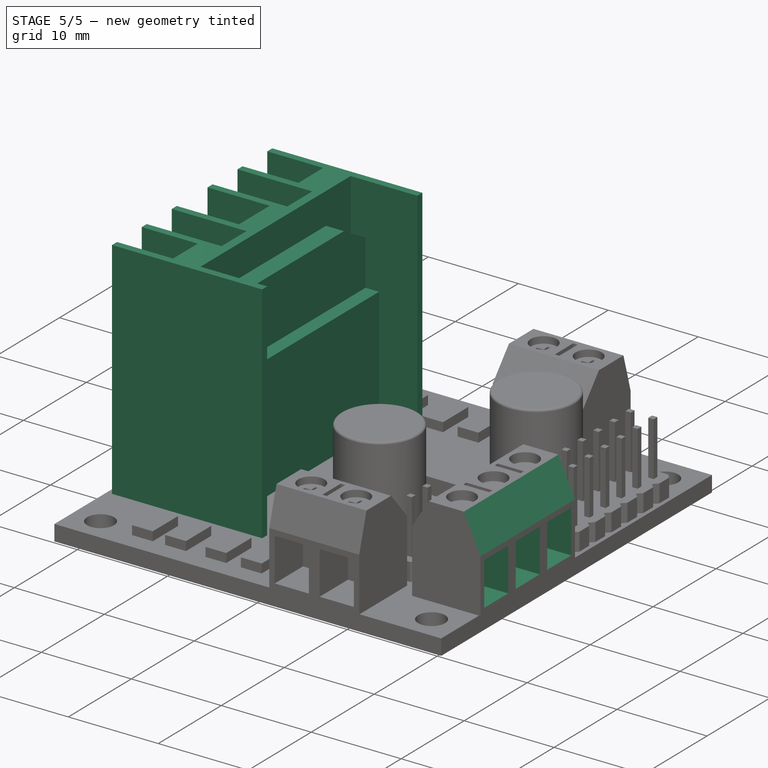
[diagram: stage 5 of 5 — iso view after this stage's code; geometry added in this stage tinted green]
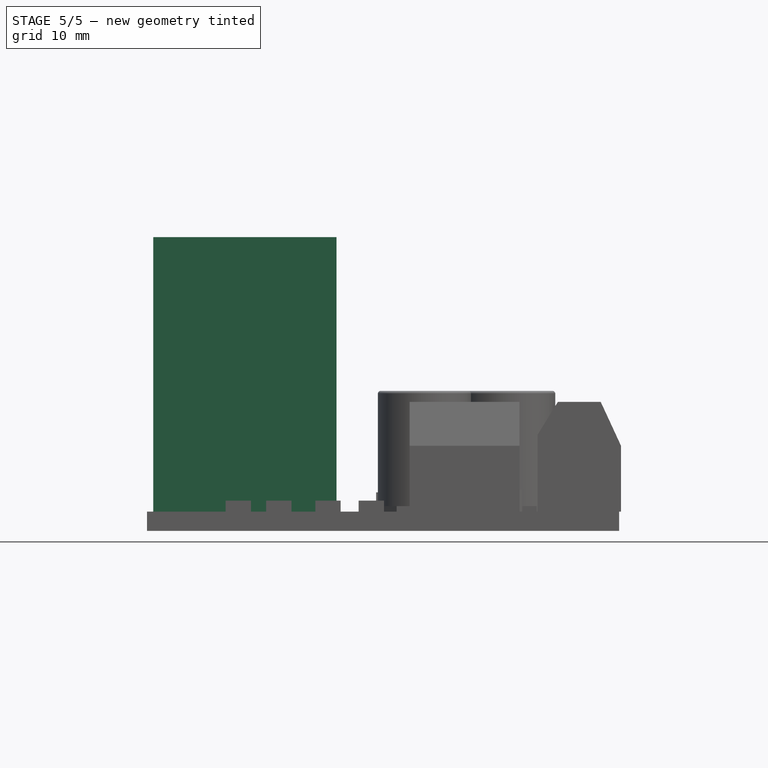
[diagram: stage 5 of 5 — front view after this stage's code; geometry added in this stage tinted green]
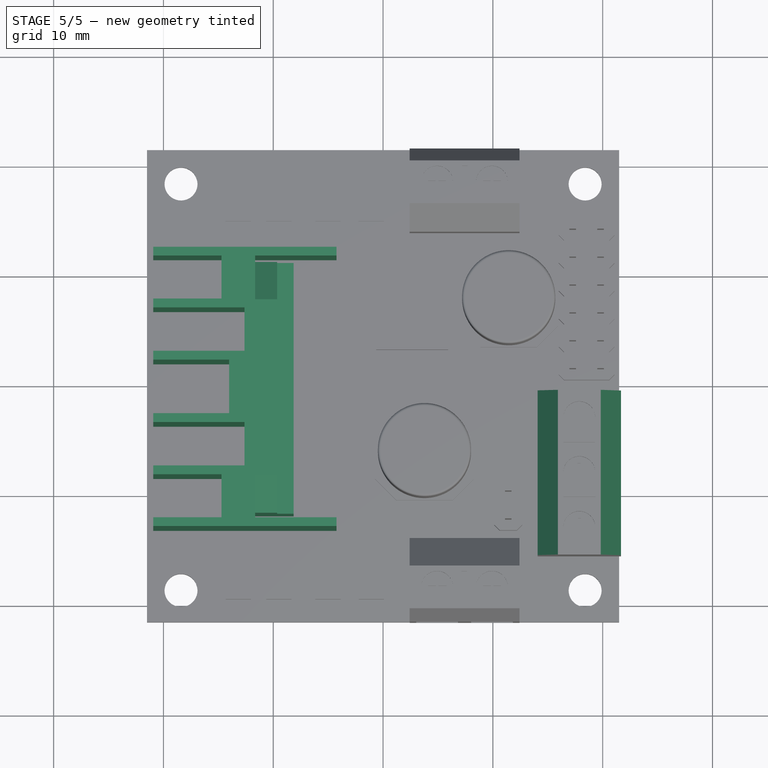
[diagram: stage 5 of 5 — top view after this stage's code; geometry added in this stage tinted green]
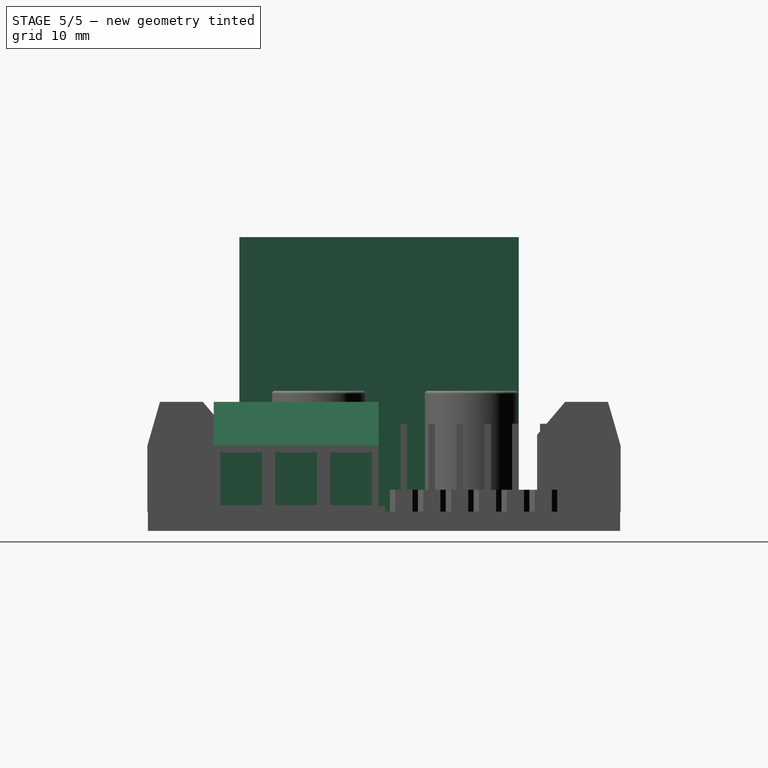
[diagram: stage 5 of 5 — right view after this stage's code; geometry added in this stage tinted green]
FEATURE [Sketcher::SketchObject] Sketch019
  ArcFitTolerance = 1e-06
  AttachmentSupport = -> [LinearPattern001]
  ExternalGeometry = -> [LinearPattern001]
  FullyConstrained = true
  MakeInternals = false
  MapMode = 5
  Placement = pos=(0,-15.5,0) rot=(1,0,0;1.5708rad)
  sketch-geometry (7):
    g0: LineSegment StartX=15.92 StartY=11.75 StartZ=0 EndX=14.07 EndY=11.75 EndZ=0
    g1: LineSegment StartX=14.07 StartY=11.75 StartZ=0 EndX=14.07 EndY=8.75 EndZ=0
    g2: LineSegment StartX=14.07 StartY=8.75 StartZ=0 EndX=15.92 EndY=11.75 EndZ=0
    g3: LineSegment StartX=19.82 StartY=11.75 StartZ=0 EndX=21.67 EndY=7.75 EndZ=0
    g4: LineSegment StartX=21.67 StartY=7.75 StartZ=0 EndX=21.67 EndY=11.75 EndZ=0
    g5: LineSegment StartX=21.67 StartY=11.75 StartZ=0 EndX=19.82 EndY=11.75 EndZ=0
    g6: GeomPoint X=14.07 Y=6.75 Z=0
  constraints (17):
    c: PointOnObject(g0,g-5)
    c: Coincident(g0,g-5)
    c: Coincident(g0,g1)
    c: PointOnObject(g1,g-4)
    c: Coincident(g1,g2)
    c: Coincident(g2,g0)
    c: PointOnObject(g3,g-5)
    c: PointOnObject(g3,g-3)
    c: Coincident(g3,g4)
    c: Coincident(g4,g-5)
    c: Coincident(g4,g5)
    c: Coincident(g5,g3)
    c: Symmetric(g-4,g0,g6)
    c: DistanceY(g6,g3) = 1
    c: DistanceY(g3,g1) = 1
    c: DistanceX(g0,g-6) = 0.5
    c: DistanceX(g-6,g3) = 0.5
FEATURE [PartDesign::Pocket] Pocket007  label="Bornera8Pocket"
  BaseFeature = -> LinearPattern001
  Direction = (0,1,-2e-16)
  Length = 15
  Length2 = 5
  Profile = -> Sketch019
  ReferenceAxis = -> Sketch019 [N_Axis]
  Refine = true
  Suppressed = false
  Type = 0
FEATURE [Sketcher::SketchObject] Sketch020
  ArcFitTolerance = 1e-06
  AttachmentSupport = -> [Pocket007]
  ExternalGeometry = -> [Pocket007]
  FullyConstrained = true
  MakeInternals = false
  MapMode = 5
  Placement = pos=(21.67,0,0) rot=(0.57735,0.57735,0.57735;2.0944rad)
  sketch-geometry (21):
    g0: LineSegment [constr] StartX=-15.5 StartY=7.75 StartZ=0 EndX=-10.5 EndY=7.75 EndZ=0
    g1: LineSegment [constr] StartX=-10.5 StartY=7.75 StartZ=0 EndX=-5.5 EndY=7.75 EndZ=0
    g2: LineSegment [constr] StartX=-5.5 StartY=7.75 StartZ=0 EndX=-0.5 EndY=7.75 EndZ=0
    g3: LineSegment StartX=-14.9 StartY=7.15 StartZ=0 EndX=-14.9 EndY=2.35 EndZ=0
    g4: LineSegment StartX=-14.9 StartY=2.35 StartZ=0 EndX=-11.1 EndY=2.35 EndZ=0
    g5: LineSegment StartX=-11.1 StartY=2.35 StartZ=0 EndX=-11.1 EndY=7.15 EndZ=0
    g6: LineSegment StartX=-11.1 StartY=7.15 StartZ=0 EndX=-14.9 EndY=7.15 EndZ=0
    g7: GeomPoint [constr] X=-13 Y=4.75 Z=0
    g8: LineSegment StartX=-9.9 StartY=7.15 StartZ=0 EndX=-9.9 EndY=2.35 EndZ=0
    g9: LineSegment StartX=-9.9 StartY=2.35 StartZ=0 EndX=-6.1 EndY=2.35 EndZ=0
    g10: LineSegment StartX=-6.1 StartY=2.35 StartZ=0 EndX=-6.1 EndY=7.15 EndZ=0
    g11: LineSegment StartX=-6.1 StartY=7.15 StartZ=0 EndX=-9.9 EndY=7.15 EndZ=0
    g12: GeomPoint [constr] X=-8 Y=4.75 Z=0
    g13: LineSegment StartX=-4.9 StartY=7.15 StartZ=0 EndX=-4.9 EndY=2.35 EndZ=0
    g14: LineSegment StartX=-4.9 StartY=2.35 StartZ=0 EndX=-1.1 EndY=2.35 EndZ=0
    g15: LineSegment StartX=-1.1 StartY=2.35 StartZ=0 EndX=-1.1 EndY=7.15 EndZ=0
    g16: LineSegment StartX=-1.1 StartY=7.15 StartZ=0 EndX=-4.9 EndY=7.15 EndZ=0
    g17: GeomPoint [constr] X=-3 Y=4.75 Z=0
    g18: GeomPoint X=-13 Y=7.75 Z=0
    g19: GeomPoint X=-8 Y=7.75 Z=0
    g20: GeomPoint X=-3 Y=7.75 Z=0
  constraints (50):
    c: Coincident(g-4,g0)
    c: PointOnObject(g0,g-3)
    c: Coincident(g0,g1)
    c: PointOnObject(g1,g-3)
    c: Coincident(g1,g2)
    c: Coincident(g2,g-5)
    c: Coincident(g3,g4)
    c: Coincident(g4,g5)
    c: Coincident(g5,g6)
    c: Coincident(g6,g3)
    c: Vertical(g3)
    c: Vertical(g5)
    c: Horizontal(g4)
    c: Horizontal(g6)
    c: Symmetric(g5,g3,g7)
    c: Coincident(g8,g9)
    c: Coincident(g9,g10)
    c: Coincident(g10,g11)
    c: Coincident(g11,g8)
    c: Vertical(g8)
    c: Vertical(g10)
    c: Horizontal(g9)
    c: Horizontal(g11)
    c: Symmetric(g10,g8,g12)
    c: Coincident(g13,g14)
    c: Coincident(g14,g15)
    c: Coincident(g15,g16)
    c: Coincident(g16,g13)
    c: Vertical(g13)
    c: Vertical(g15)
    c: Horizontal(g14)
    c: Horizontal(g16)
    c: Symmetric(g15,g13,g17)
    c: DistanceX(g5,g0) = 0.6
    c: DistanceX(g0,g3) = 0.6
    c: DistanceY(g5,g0) = 0.6
    c: DistanceY(g-4,g3) = 0.6
    c: Symmetric(g0,g0,g18)
    c: Symmetric(g1,g1,g19)
    c: Symmetric(g2,g2,g20)
    c: Equal(g2,g1)
    c: Equal(g1,g0)
    c: Vertical(g17,g20)
    c: Vertical(g12,g19)
    c: Equal(g11,g6)
    c: Equal(g16,g11)
    c: Equal(g13,g10)
    c: Equal(g10,g5)
    c: Horizontal(g17,g12)
    c: Horizontal(g12,g7)
FEATURE [PartDesign::Pocket] Pocket008  label="Bornera9Pocket"
  BaseFeature = -> Pocket007
  Direction = (-1,0,0)
  Length = 4.5
  Length2 = 5
  Profile = -> Sketch020
  ReferenceAxis = -> Sketch020 [N_Axis]
  Refine = true
  Suppressed = false
  Type = 0
FEATURE [PartDesign::Fillet] Fillet  label="CapacitorFillet"
  Base = -> Pocket008 [Edge625,Edge627]
  BaseFeature = -> Pocket008
  Radius = 0.25
  Refine = true
  SupportTransform = false
  Suppressed = false
  UseAllEdges = false
FEATURE [Sketcher::SketchObject] Sketch021
  ArcFitTolerance = 1e-06
  AttachmentSupport = -> [Fillet]
  FullyConstrained = true
  MakeInternals = false
  MapMode = 5
  Placement = pos=(0,0,1.75) rot=(0,0,1;0rad)
  sketch-geometry (28):
    g0: LineSegment StartX=-20.93 StartY=12.27 StartZ=0 EndX=-4.24 EndY=12.27 EndZ=0
    g1: LineSegment StartX=-4.24 StartY=12.27 StartZ=0 EndX=-4.24 EndY=11.47 EndZ=0
    g2: LineSegment StartX=-4.24 StartY=11.47 StartZ=0 EndX=-11.65 EndY=11.47 EndZ=0
    g3: LineSegment StartX=-11.65 StartY=11.47 StartZ=0 EndX=-11.65 EndY=-12.37 EndZ=0
    g4: LineSegment StartX=-11.65 StartY=-12.37 StartZ=0 EndX=-4.24 EndY=-12.37 EndZ=0
    g5: LineSegment StartX=-4.24 StartY=-12.37 StartZ=0 EndX=-4.24 EndY=-13.17 EndZ=0
    g6: LineSegment StartX=-4.24 StartY=-13.17 StartZ=0 EndX=-20.93 EndY=-13.17 EndZ=0
    g7: LineSegment StartX=-20.93 StartY=-13.17 StartZ=0 EndX=-20.93 EndY=-12.37 EndZ=0
    g8: LineSegment StartX=-20.93 StartY=-12.37 StartZ=0 EndX=-14.71 EndY=-12.37 EndZ=0
    g9: LineSegment StartX=-14.71 StartY=-12.37 StartZ=0 EndX=-14.71 EndY=-8.45 EndZ=0
    g10: LineSegment StartX=-14.71 StartY=-8.45 StartZ=0 EndX=-20.93 EndY=-8.45 EndZ=0
    g11: LineSegment StartX=-20.93 StartY=-8.45 StartZ=0 EndX=-20.93 EndY=-7.65 EndZ=0
    g12: LineSegment StartX=-20.93 StartY=-7.65 StartZ=0 EndX=-12.62 EndY=-7.65 EndZ=0
    g13: LineSegment StartX=-12.62 StartY=-7.65 StartZ=0 EndX=-12.62 EndY=-3.69 EndZ=0
    g14: LineSegment StartX=-12.62 StartY=-3.69 StartZ=0 EndX=-20.93 EndY=-3.69 EndZ=0
    g15: LineSegment StartX=-20.93 StartY=-3.69 StartZ=0 EndX=-20.93 EndY=-2.89 EndZ=0
    g16: LineSegment StartX=-20.93 StartY=-2.89 StartZ=0 EndX=-14.02 EndY=-2.89 EndZ=0
    g17: LineSegment StartX=-14.02 StartY=-2.89 StartZ=0 EndX=-14.02 EndY=1.99 EndZ=0
    g18: LineSegment StartX=-14.02 StartY=1.99 StartZ=0 EndX=-20.93 EndY=1.99 EndZ=0
    g19: LineSegment StartX=-20.93 StartY=1.99 StartZ=0 EndX=-20.93 EndY=2.79 EndZ=0
    g20: LineSegment StartX=-20.93 StartY=2.79 StartZ=0 EndX=-12.62 EndY=2.79 EndZ=0
    g21: LineSegment StartX=-12.62 StartY=2.79 StartZ=0 EndX=-12.62 EndY=6.75 EndZ=0
    g22: LineSegment StartX=-12.62 StartY=6.75 StartZ=0 EndX=-20.93 EndY=6.75 EndZ=0
    g23: LineSegment StartX=-20.93 StartY=6.75 StartZ=0 EndX=-20.93 EndY=7.55 EndZ=0
    g24: LineSegment StartX=-20.93 StartY=7.55 StartZ=0 EndX=-14.71 EndY=7.55 EndZ=0
    g25: LineSegment StartX=-14.71 StartY=7.55 StartZ=0 EndX=-14.71 EndY=11.47 EndZ=0
    g26: LineSegment StartX=-14.71 StartY=11.47 StartZ=0 EndX=-20.93 EndY=11.47 EndZ=0
    g27: LineSegment StartX=-20.93 StartY=11.47 StartZ=0 EndX=-20.93 EndY=12.27 EndZ=0
  constraints (84):
    c: Horizontal(g0)
    c: Coincident(g0,g1)
    c: Coincident(g1,g2)
    c: Horizontal(g2)
    c: Coincident(g2,g3)
    c: Vertical(g3)
    c: Coincident(g3,g4)
    c: Horizontal(g4)
    c: Coincident(g4,g5)
    c: Vertical(g5)
    c: Coincident(g5,g6)
    c: Horizontal(g6)
    c: Coincident(g6,g7)
    c: Vertical(g7)
    c: Coincident(g7,g8)
    c: Horizontal(g8)
    c: Coincident(g8,g9)
    c: Vertical(g9)
    c: Coincident(g9,g10)
    c: Horizontal(g10)
    c: Coincident(g10,g11)
    c: Vertical(g11)
    c: Coincident(g11,g12)
    c: Horizontal(g12)
    c: Coincident(g12,g13)
    c: Vertical(g13)
    c: Coincident(g13,g14)
    c: Horizontal(g14)
    c: Coincident(g14,g15)
    c: Coincident(g15,g16)
    c: Horizontal(g16)
    c: Coincident(g16,g17)
    c: Vertical(g17)
    c: Coincident(g17,g18)
    c: Horizontal(g18)
    c: Coincident(g18,g19)
    c: Vertical(g19)
    c: Coincident(g19,g20)
    c: Horizontal(g20)
    c: Coincident(g20,g21)
    c: Vertical(g21)
    c: Coincident(g21,g22)
    c: Horizontal(g22)
    c: Coincident(g22,g23)
    c: Coincident(g23,g24)
    c: Horizontal(g24)
    c: Coincident(g24,g25)
    c: Vertical(g25)
    c: Coincident(g25,g26)
    c: Horizontal(g26)
    c: Coincident(g26,g27)
    c: Coincident(g27,g0)
    c: Vertical(g27)
    c: Vertical(g23,g26)
    c: Vertical(g22,g19)
    c: Vertical(g23)
    c: Vertical(g18,g15)
    c: Vertical(g15)
    c: Vertical(g13,g20)
    c: Vertical(g24,g9)
    c: Vertical(g1)
    c: Vertical(g1,g4)
    c: Equal(g7,g11)
    c: Equal(g11,g15)
    c: Equal(g15,g19)
    c: Equal(g19,g23)
    c: Equal(g23,g27)
    c: DistanceY(g27,g27) = 0.8
    c: DistanceY(g21,g21) = 3.96
    c: DistanceY(g25,g25) = 3.92
    c: Equal(g25,g9)
    c: Equal(g13,g21)
    c: Horizontal(g3,g8)
    c: Horizontal(g2,g25)
    c: DistanceX(g2,g2) = 7.41
    c: DistanceX(g0,g0) = 16.69
    c: DistanceX(g26,g26) = 6.22
    c: DistanceX(g22,g22) = 8.31
    c: DistanceX(g18,g18) = 6.91
    c: DistanceX(g5,g-1) = 4.24
    c: DistanceY(g-1,g1) = 11.47
    c: DistanceY(g3,g3) = 23.84
    c: Vertical(g11,g14)
    c: Vertical(g7,g10)
FEATURE [PartDesign::Pad] Pad012  label="HeatSinkPad"
  BaseFeature = -> Fillet
  Direction = (0,0,1)
  Length = 25
  Length2 = 10
  Profile = -> Sketch021
  ReferenceAxis = -> Sketch021 [N_Axis]
  Refine = true
  Suppressed = false
  Type = 0
FEATURE [Sketcher::SketchObject] Sketch022
  ArcFitTolerance = 1e-06
  AttachmentSupport = -> [Pad012]
  ExternalGeometry = -> [Pad012]
  FullyConstrained = true
  MakeInternals = false
  MapMode = 5
  Placement = pos=(-11.65,0,0) rot=(0.57735,0.57735,0.57735;2.0944rad)
  sketch-geometry (6):
    g0: LineSegment StartX=-11.87 StartY=16.25 StartZ=0 EndX=-11.87 EndY=2.5 EndZ=0
    g1: LineSegment StartX=-11.87 StartY=2.5 StartZ=0 EndX=10.97 EndY=2.5 EndZ=0
    g2: LineSegment StartX=10.97 StartY=2.5 StartZ=0 EndX=10.97 EndY=16.25 EndZ=0
    g3: LineSegment StartX=10.97 StartY=16.25 StartZ=0 EndX=-11.87 EndY=16.25 EndZ=0
    g4: LineSegment [constr] StartX=10.97 StartY=16.25 StartZ=0 EndX=11.47 EndY=16.25 EndZ=0
    g5: LineSegment [constr] StartX=-11.87 StartY=16.25 StartZ=0 EndX=-12.37 EndY=16.25 EndZ=0
  constraints (18):
    c: Coincident(g0,g1)
    c: Coincident(g1,g2)
    c: Coincident(g2,g3)
    c: Coincident(g3,g0)
    c: Vertical(g0)
    c: Vertical(g2)
    c: Horizontal(g1)
    c: Horizontal(g3)
    c: Coincident(g4,g2)
    c: PointOnObject(g4,g-4)
    c: Horizontal(g4)
    c: Coincident(g5,g0)
    c: PointOnObject(g5,g-3)
    c: Horizontal(g5)
    c: Equal(g5,g4)
    c: DistanceY(g-4,g1) = 0.75
    c: DistanceY(g2,g-4) = 10.5
    c: DistanceX(g4,g4) = 0.5
FEATURE [PartDesign::Pad] Pad013  label="TransistorPad"
  BaseFeature = -> Pad012
  Direction = (1,0,0)
  Length = 3.5
  Length2 = 10
  Profile = -> Sketch022
  ReferenceAxis = -> Sketch022 [N_Axis]
  Refine = true
  Suppressed = false
  Type = 0
FEATURE [Sketcher::SketchObject] Sketch023
  ArcFitTolerance = 1e-06
  AttachmentSupport = -> [Pad013]
  ExternalGeometry = -> [Pad013]
  FullyConstrained = true
  MakeInternals = false
  MapMode = 5
  Placement = pos=(-11.65,0,0) rot=(0.57735,0.57735,0.57735;2.0944rad)
  sketch-geometry (6):
    g0: LineSegment StartX=-11.87 StartY=16.25 StartZ=0 EndX=-11.87 EndY=21.2755 EndZ=0
    g1: LineSegment StartX=-11.87 StartY=21.2755 StartZ=0 EndX=-8.45 EndY=23.25 EndZ=0
    g2: LineSegment StartX=-8.45 StartY=23.25 StartZ=0 EndX=7.55 EndY=23.25 EndZ=0
    g3: LineSegment StartX=7.55 StartY=23.25 StartZ=0 EndX=10.97 EndY=21.2755 EndZ=0
    g4: LineSegment StartX=10.97 StartY=21.2755 StartZ=0 EndX=10.97 EndY=16.25 EndZ=0
    g5: LineSegment StartX=10.97 StartY=16.25 StartZ=0 EndX=-11.87 EndY=16.25 EndZ=0
  constraints (16):
    c: Coincident(g-3,g0)
    c: Vertical(g0)
    c: Coincident(g0,g1)
    c: Coincident(g1,g2)
    c: Horizontal(g2)
    c: Coincident(g2,g3)
    c: Coincident(g3,g4)
    c: Coincident(g4,g-3)
    c: Vertical(g4)
    c: Coincident(g4,g5)
    c: Coincident(g5,g0)
    c: DistanceY(g4,g2) = 7
    c: Angle(g3,g4) = 2.0944
    c: Equal(g3,g1)
    c: Horizontal(g0,g3)
    c: DistanceX(g2,g2) = 16
FEATURE [PartDesign::Pad] Pad014  label="Transistor2Pad"
  BaseFeature = -> Pad013
  Direction = (1,0,0)
  Length = 2
  Length2 = 10
  Profile = -> Sketch023
  ReferenceAxis = -> Sketch023 [N_Axis]
  Refine = true
  Suppressed = false
  Type = 0
FEATURE [PartDesign::Body] Body  label="driver_l298n"
  AllowCompound = false
  Group = -> [Sketch,Pad,Sketch001,Pocket,Sketch002,Pad001,Sketch003,Pad002,Sketch004,Pad003,Sketch005,Pad004,Sketch006,Pad005,Sketch007,Pad006,Sketch008,Pad007,LinearPattern,Sketch009,Pad008,Sketch010,Pad009,Sketch011,Pad010,Sketch012,Pocket001,Sketch013,Pocket002,Sketch014,Pocket003,Sketch015,Pocket004,Mirrored,Mirrored001,Mirrored002,Mirrored003,Mirrored004,Sketch016,Pad011,Sketch017,Pocket005,Sketch018,+13 more]
  Origin = -> Origin
  Tip = -> Pad014
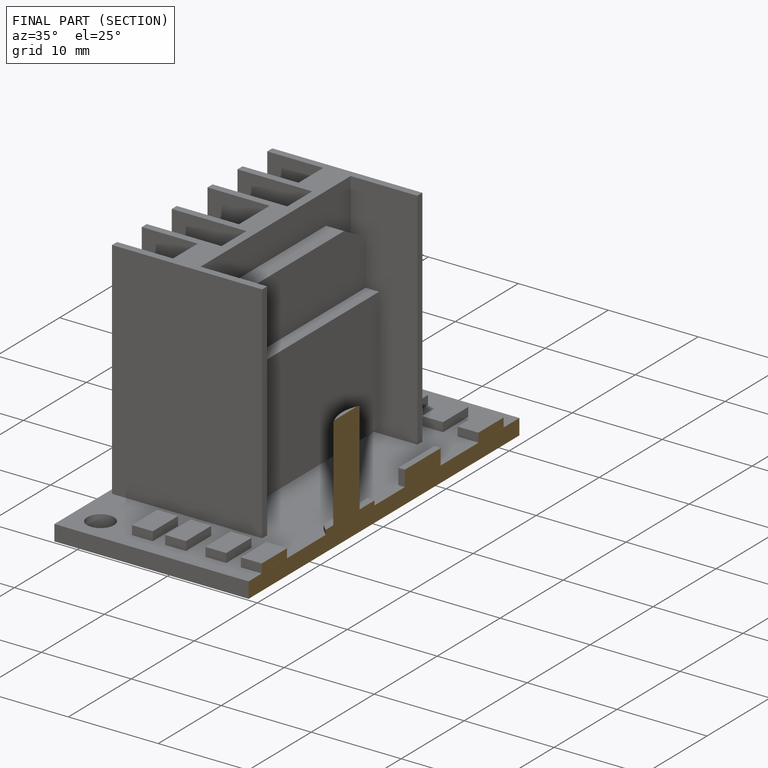
[diagram: finished part — half-section view (interior)]
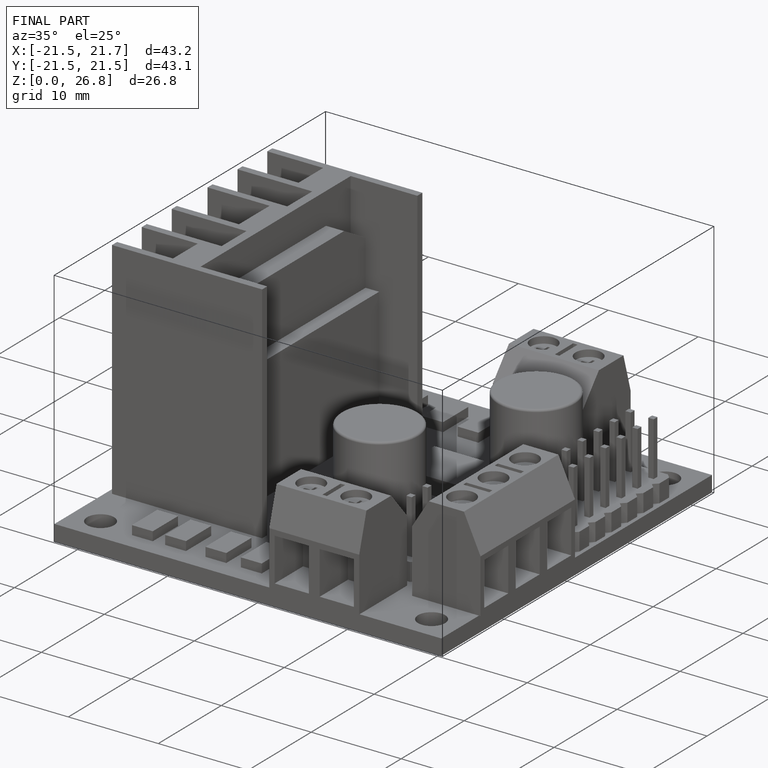
[diagram: finished part — iso view with bounding-box wireframe]
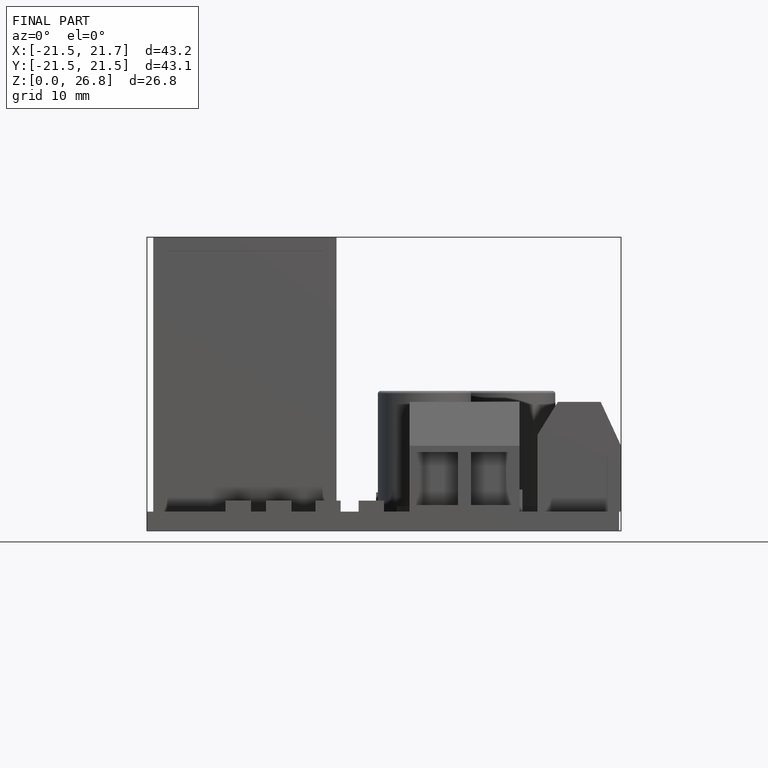
[diagram: finished part — front view with bounding-box wireframe]
